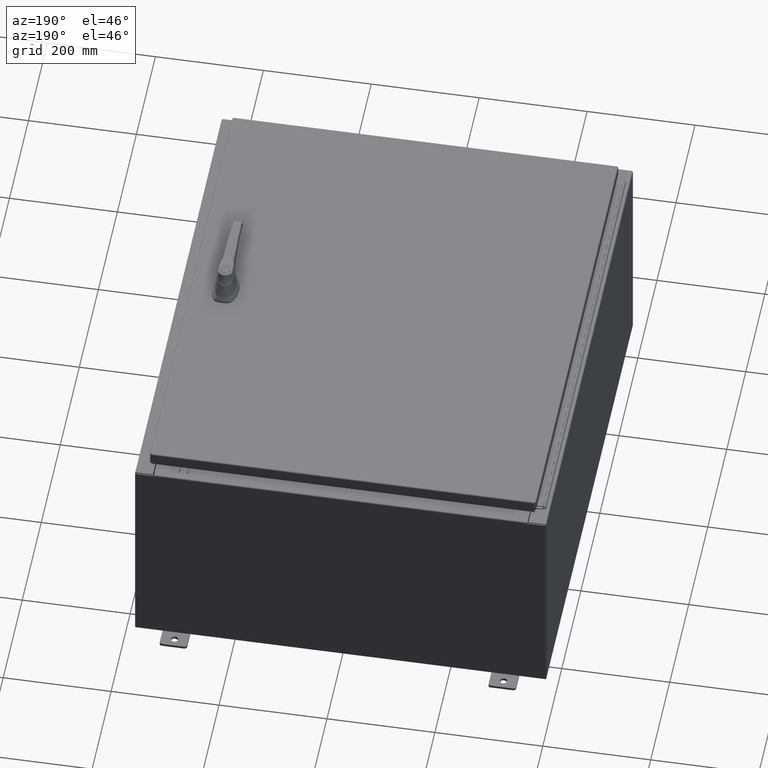
[diagram: clean part render]
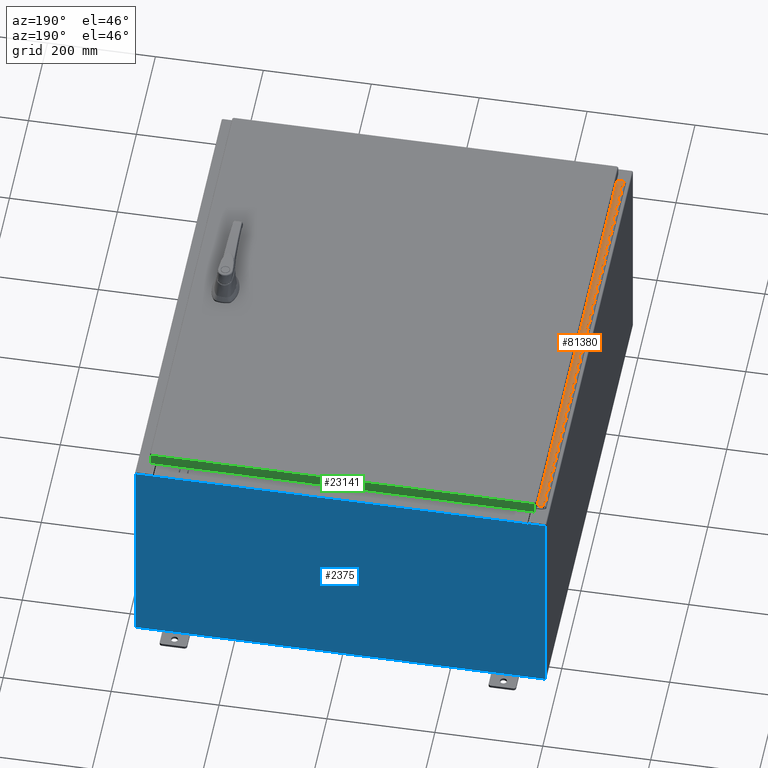
[diagram: same view with three faces highlighted in distinct colors, each labeled with its STEP entity id]
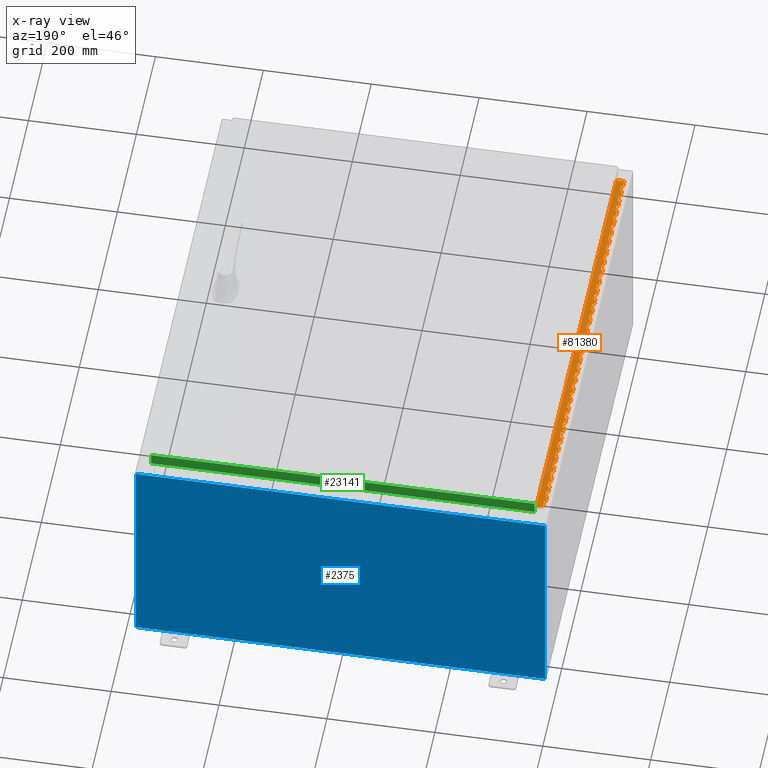
[diagram: x-ray of the same camera — body ghosted, the three highlighted faces saturated]
A machine part, auxiliary view with three faces highlighted in distinct colors.
The next image is the same camera in x-ray (body ghosted, the three faces saturated) — at least one of them is partly hidden behind the body in this view.
Their STEP definitions:

[orange] entity #81380 — the highlighted planar face has unit normal (-0, -0, 1).
#101 = DIRECTION ( 'NONE',  ( 3.389037039080723100E-015, 1.000000000000000000, -0.0000000000000000000 ) ) ;
#191 = EDGE_CURVE ( 'NONE', #114105, #89992, #98665, .T. ) ;
#212 = VECTOR ( 'NONE', #36417, 39.37007874015748100 ) ;
#215 = VERTEX_POINT ( 'NONE', #24467 ) ;
#260 = EDGE_CURVE ( 'NONE', #215, #13571, #36273, .T. ) ;
#279 = VECTOR ( 'NONE', #18577, 39.37007874015748100 ) ;
#288 = CARTESIAN_POINT ( 'NONE',  ( -0.6869999999999978300, 0.6754999999999996600, -33.00000000000000000 ) ) ;
#336 = ORIENTED_EDGE ( 'NONE', *, *, #86893, .F. ) ;
#352 = ORIENTED_EDGE ( 'NONE', *, *, #52121, .F. ) ;
#389 = DIRECTION ( 'NONE',  ( -3.389037039080723100E-015, -1.000000000000000000, 0.0000000000000000000 ) ) ;
#468 = VECTOR ( 'NONE', #18149, 39.37007874015748100 ) ;
#606 = CARTESIAN_POINT ( 'NONE',  ( -0.6869999999999973900, 0.8004999999999995500, -12.99999999999999800 ) ) ;
#738 = DIRECTION ( 'NONE',  ( 0.0000000000000000000, 0.0000000000000000000, 1.000000000000000000 ) ) ;
#828 = EDGE_CURVE ( 'NONE', #28234, #70765, #50987, .T. ) ;
#973 = CARTESIAN_POINT ( 'NONE',  ( -0.6869999999999998300, 0.07549999999999991400, -33.00000000000000000 ) ) ;
#1100 = CARTESIAN_POINT ( 'NONE',  ( -0.6869999999999973900, 0.8004999999999995500, -17.00000000000000000 ) ) ;
#1542 = EDGE_CURVE ( 'NONE', #75951, #48557, #82062, .T. ) ;
#1599 = ORIENTED_EDGE ( 'NONE', *, *, #5686, .F. ) ;
#1630 = VERTEX_POINT ( 'NONE', #108607 ) ;
#1786 = LINE ( 'NONE', #25657, #122040 ) ;
#1835 = DIRECTION ( 'NONE',  ( 0.0000000000000000000, 0.0000000000000000000, 1.000000000000000000 ) ) ;
#1857 = LINE ( 'NONE', #12426, #99772 ) ;
#1960 = VECTOR ( 'NONE', #50583, 39.37007874015748100 ) ;
#2044 = EDGE_CURVE ( 'NONE', #114877, #1630, #24129, .T. ) ;
#2070 = CARTESIAN_POINT ( 'NONE',  ( -0.6869999999999982800, 0.5504999999999997700, -25.50000000000000400 ) ) ;
#2125 = LINE ( 'NONE', #68511, #58440 ) ;
#2406 = CARTESIAN_POINT ( 'NONE',  ( -0.6869999999999978300, 0.6754999999999996600, -7.000000000000000000 ) ) ;
#2509 = DIRECTION ( 'NONE',  ( 0.0000000000000000000, 0.0000000000000000000, 1.000000000000000000 ) ) ;
#2661 = DIRECTION ( 'NONE',  ( 0.0000000000000000000, -0.0000000000000000000, -1.000000000000000000 ) ) ;
#2899 = CARTESIAN_POINT ( 'NONE',  ( -0.6869999999999978300, 0.6754999999999996600, -20.00000000000000000 ) ) ;
#3043 = CARTESIAN_POINT ( 'NONE',  ( -0.6869999999999978300, 0.6754999999999996600, -1.000000000000000000 ) ) ;
#3123 = DIRECTION ( 'NONE',  ( -3.389037039080723100E-015, -1.000000000000000000, 0.0000000000000000000 ) ) ;
#3141 = CARTESIAN_POINT ( 'NONE',  ( -0.6869999999999982800, 0.5504999999999997700, -3.500000000000000000 ) ) ;
#3157 = CARTESIAN_POINT ( 'NONE',  ( -0.6869999999999978300, 0.6754999999999996600, -2.000000000000000000 ) ) ;
#3434 = LINE ( 'NONE', #84450, #468 ) ;
#3451 = EDGE_CURVE ( 'NONE', #104999, #75951, #95232, .T. ) ;
#3515 = ORIENTED_EDGE ( 'NONE', *, *, #36219, .T. ) ;
#3662 = CARTESIAN_POINT ( 'NONE',  ( -0.6869999999999978300, 0.6754999999999996600, -11.50000000000000000 ) ) ;
#3896 = VERTEX_POINT ( 'NONE', #67620 ) ;
#3928 = VECTOR ( 'NONE', #738, 39.37007874015748100 ) ;
#4037 = CARTESIAN_POINT ( 'NONE',  ( -0.6869999999999978300, 0.6754999999999996600, -10.00000000000000000 ) ) ;
#4045 = VERTEX_POINT ( 'NONE', #28693 ) ;
#4227 = EDGE_CURVE ( 'NONE', #108559, #5040, #35682, .T. ) ;
#4241 = VECTOR ( 'NONE', #64926, 39.37007874015748100 ) ;
#4244 = VECTOR ( 'NONE', #123123, 39.37007874015748100 ) ;
#4298 = CARTESIAN_POINT ( 'NONE',  ( -0.6869999999999978300, 0.6754999999999996600, -27.00000000000000000 ) ) ;
#4471 = LINE ( 'NONE', #4805, #77138 ) ;
#4648 = CARTESIAN_POINT ( 'NONE',  ( -0.6869999999999978300, 0.6754999999999996600, -32.00000000000000000 ) ) ;
#4686 = ORIENTED_EDGE ( 'NONE', *, *, #100650, .T. ) ;
#4708 = VERTEX_POINT ( 'NONE', #25030 ) ;
#4805 = CARTESIAN_POINT ( 'NONE',  ( -0.6869999999999973900, 0.8004999999999995500, -19.50000000000000000 ) ) ;
#4860 = CARTESIAN_POINT ( 'NONE',  ( -0.6869999999999982800, 0.5504999999999997700, -3.500000000000000000 ) ) ;
#5015 = DIRECTION ( 'NONE',  ( -3.389037039080723100E-015, -1.000000000000000000, 0.0000000000000000000 ) ) ;
#5022 = CARTESIAN_POINT ( 'NONE',  ( -0.6869999999999978300, 0.6754999999999996600, -27.50000000000000000 ) ) ;
#5028 = VECTOR ( 'NONE', #8300, 39.37007874015748100 ) ;
#5031 = VECTOR ( 'NONE', #106146, 39.37007874015748100 ) ;
#5034 = VECTOR ( 'NONE', #80691, 39.37007874015748100 ) ;
#5040 = VERTEX_POINT ( 'NONE', #59169 ) ;
#5256 = ORIENTED_EDGE ( 'NONE', *, *, #28103, .F. ) ;
#5265 = CARTESIAN_POINT ( 'NONE',  ( -0.6869999999999978300, 0.6754999999999996600, -22.00000000000000000 ) ) ;
#5267 = CARTESIAN_POINT ( 'NONE',  ( -0.6869999999999978300, 0.6754999999999996600, -16.00000000000000000 ) ) ;
#5327 = EDGE_CURVE ( 'NONE', #9383, #42024, #63085, .T. ) ;
#5363 = DIRECTION ( 'NONE',  ( 3.389037039080723100E-015, 1.000000000000000000, -0.0000000000000000000 ) ) ;
#5686 = EDGE_CURVE ( 'NONE', #47910, #9546, #89789, .T. ) ;
#5801 = DIRECTION ( 'NONE',  ( 3.389037039080723100E-015, 1.000000000000000000, -0.0000000000000000000 ) ) ;
#5820 = VERTEX_POINT ( 'NONE', #45808 ) ;
#5999 = LINE ( 'NONE', #57468, #104016 ) ;
#6019 = ORIENTED_EDGE ( 'NONE', *, *, #50631, .F. ) ;
#6078 = LINE ( 'NONE', #6737, #81700 ) ;
#6155 = DIRECTION ( 'NONE',  ( 0.0000000000000000000, 0.0000000000000000000, 1.000000000000000000 ) ) ;
#6193 = CARTESIAN_POINT ( 'NONE',  ( -0.6869999999999973900, 0.8004999999999995500, -2.000000000000000000 ) ) ;
#6238 = VECTOR ( 'NONE', #81043, 39.37007874015748100 ) ;
#6245 = VERTEX_POINT ( 'NONE', #6373 ) ;
#6373 = CARTESIAN_POINT ( 'NONE',  ( -0.6869999999999978300, 0.6754999999999996600, -9.500000000000000000 ) ) ;
#6399 = DIRECTION ( 'NONE',  ( 3.389037039080723100E-015, 1.000000000000000000, -0.0000000000000000000 ) ) ;
#6737 = CARTESIAN_POINT ( 'NONE',  ( -0.6869999999999973900, 0.8004999999999995500, -9.500000000000000000 ) ) ;
#6749 = EDGE_CURVE ( 'NONE', #36766, #105922, #100061, .T. ) ;
#6897 = CARTESIAN_POINT ( 'NONE',  ( -0.6869999999999978300, 0.6754999999999996600, -17.50000000000000000 ) ) ;
#7062 = ORIENTED_EDGE ( 'NONE', *, *, #9548, .T. ) ;
#7544 = EDGE_CURVE ( 'NONE', #57124, #65717, #74683, .T. ) ;
#7705 = EDGE_CURVE ( 'NONE', #44871, #102143, #59777, .T. ) ;
#7710 = CARTESIAN_POINT ( 'NONE',  ( -0.6869999999999982800, 0.5504999999999997700, -10.50000000000000000 ) ) ;
#7801 = LINE ( 'NONE', #12720, #119122 ) ;
#7826 = VECTOR ( 'NONE', #11877, 39.37007874015748100 ) ;
#8034 = LINE ( 'NONE', #90245, #5034 ) ;
#8202 = EDGE_CURVE ( 'NONE', #118742, #8653, #55260, .T. ) ;
#8206 = CARTESIAN_POINT ( 'NONE',  ( -0.6869999999999998300, 0.07549999999999991400, -33.00000000000000000 ) ) ;
#8300 = DIRECTION ( 'NONE',  ( 0.0000000000000000000, 0.0000000000000000000, 1.000000000000000000 ) ) ;
#8339 = LINE ( 'NONE', #93109, #30542 ) ;
#8536 = CARTESIAN_POINT ( 'NONE',  ( -0.6869999999999978300, 0.6754999999999996600, -10.50000000000000000 ) ) ;
#8548 = LINE ( 'NONE', #46851, #55931 ) ;
#8653 = VERTEX_POINT ( 'NONE', #33553 ) ;
#9013 = VECTOR ( 'NONE', #53481, 39.37007874015748100 ) ;
#9051 = LINE ( 'NONE', #33348, #34195 ) ;
#9225 = CARTESIAN_POINT ( 'NONE',  ( -0.6869999999999973900, 0.8004999999999995500, -32.00000000000000000 ) ) ;
#9253 = LINE ( 'NONE', #101893, #37424 ) ;
#9364 = EDGE_CURVE ( 'NONE', #94923, #43598, #12145, .T. ) ;
#9383 = VERTEX_POINT ( 'NONE', #26403 ) ;
#9420 = LINE ( 'NONE', #109117, #101382 ) ;
#9546 = VERTEX_POINT ( 'NONE', #103639 ) ;
#9548 = EDGE_CURVE ( 'NONE', #101257, #61085, #50627, .T. ) ;
#9577 = VERTEX_POINT ( 'NONE', #84870 ) ;
#9584 = CARTESIAN_POINT ( 'NONE',  ( -0.6869999999999978300, 0.6754999999999996600, -21.00000000000000000 ) ) ;
#9835 = DIRECTION ( 'NONE',  ( 0.0000000000000000000, 0.0000000000000000000, 1.000000000000000000 ) ) ;
#10140 = LINE ( 'NONE', #30847, #108079 ) ;
#10440 = VECTOR ( 'NONE', #119272, 39.37007874015748100 ) ;
#10444 = VERTEX_POINT ( 'NONE', #53451 ) ;
#10446 = LINE ( 'NONE', #95687, #32606 ) ;
#10695 = ORIENTED_EDGE ( 'NONE', *, *, #56882, .F. ) ;
#10700 = VERTEX_POINT ( 'NONE', #57176 ) ;
#10759 = LINE ( 'NONE', #55329, #58171 ) ;
#10921 = LINE ( 'NONE', #105108, #105947 ) ;
#10949 = CARTESIAN_POINT ( 'NONE',  ( -0.6869999999999978300, 0.6754999999999996600, -30.50000000000000400 ) ) ;
#11343 = ORIENTED_EDGE ( 'NONE', *, *, #2044, .T. ) ;
#11373 = ORIENTED_EDGE ( 'NONE', *, *, #104358, .F. ) ;
#11379 = CARTESIAN_POINT ( 'NONE',  ( -0.6869999999999973900, 0.8004999999999995500, -8.000000000000000000 ) ) ;
#11478 = DIRECTION ( 'NONE',  ( 3.369016658928398200E-015, 1.000000000000000000, 0.0000000000000000000 ) ) ;
#11661 = VERTEX_POINT ( 'NONE', #120943 ) ;
#11686 = ORIENTED_EDGE ( 'NONE', *, *, #260, .F. ) ;
#11778 = CARTESIAN_POINT ( 'NONE',  ( -0.6869999999999982800, 0.5504999999999997700, -8.500000000000000000 ) ) ;
#11833 = DIRECTION ( 'NONE',  ( 3.389037039080723100E-015, 1.000000000000000000, -0.0000000000000000000 ) ) ;
#11866 = DIRECTION ( 'NONE',  ( 0.0000000000000000000, 0.0000000000000000000, 1.000000000000000000 ) ) ;
#11877 = DIRECTION ( 'NONE',  ( 0.0000000000000000000, -0.0000000000000000000, -1.000000000000000000 ) ) ;
#11931 = VERTEX_POINT ( 'NONE', #10949 ) ;
#12097 = EDGE_CURVE ( 'NONE', #57124, #88110, #38427, .T. ) ;
#12145 = LINE ( 'NONE', #82794, #110145 ) ;
#12180 = DIRECTION ( 'NONE',  ( 0.0000000000000000000, 0.0000000000000000000, 1.000000000000000000 ) ) ;
#12280 = VERTEX_POINT ( 'NONE', #101198 ) ;
#12372 = VECTOR ( 'NONE', #14200, 39.37007874015748100 ) ;
#12426 = CARTESIAN_POINT ( 'NONE',  ( -0.6869999999999973900, 0.8004999999999995500, -19.00000000000000000 ) ) ;
#12720 = CARTESIAN_POINT ( 'NONE',  ( -0.6869999999999973900, 0.8004999999999995500, -6.499999999999999100 ) ) ;
#12781 = DIRECTION ( 'NONE',  ( 3.369016658928398200E-015, 1.000000000000000000, 0.0000000000000000000 ) ) ;
#12963 = VERTEX_POINT ( 'NONE', #36716 ) ;
#13134 = VERTEX_POINT ( 'NONE', #60227 ) ;
#13173 = ORIENTED_EDGE ( 'NONE', *, *, #58462, .T. ) ;
#13211 = VECTOR ( 'NONE', #108333, 39.37007874015748100 ) ;
#13256 = EDGE_CURVE ( 'NONE', #93634, #104999, #67904, .T. ) ;
#13512 = ORIENTED_EDGE ( 'NONE', *, *, #91204, .T. ) ;
#13571 = VERTEX_POINT ( 'NONE', #105517 ) ;
#13650 = VERTEX_POINT ( 'NONE', #39854 ) ;
#13672 = LINE ( 'NONE', #90837, #108678 ) ;
#13797 = CARTESIAN_POINT ( 'NONE',  ( -0.6869999999999982800, 0.5504999999999997700, -30.50000000000000400 ) ) ;
#13957 = LINE ( 'NONE', #115458, #39160 ) ;
#13987 = VECTOR ( 'NONE', #89932, 39.37007874015748100 ) ;
#14081 = DIRECTION ( 'NONE',  ( 3.389037039080723100E-015, 1.000000000000000000, -0.0000000000000000000 ) ) ;
#14109 = ORIENTED_EDGE ( 'NONE', *, *, #84650, .F. ) ;
#14138 = VECTOR ( 'NONE', #86209, 39.37007874015748100 ) ;
#14200 = DIRECTION ( 'NONE',  ( 3.389037039080723100E-015, 1.000000000000000000, -0.0000000000000000000 ) ) ;
#14265 = VECTOR ( 'NONE', #45061, 39.37007874015748100 ) ;
#14310 = CARTESIAN_POINT ( 'NONE',  ( -0.6869999999999973900, 0.8004999999999995500, -20.50000000000000400 ) ) ;
#14492 = DIRECTION ( 'NONE',  ( 0.0000000000000000000, 0.0000000000000000000, 1.000000000000000000 ) ) ;
#14566 = LINE ( 'NONE', #77774, #61952 ) ;
#14604 = CARTESIAN_POINT ( 'NONE',  ( -0.6869999999999973900, 0.8004999999999995500, -23.99999999999999600 ) ) ;
#14958 = CARTESIAN_POINT ( 'NONE',  ( -0.6870000000000022800, -0.6245000000000003900, -33.00000000000000000 ) ) ;
#15473 = LINE ( 'NONE', #86329, #40665 ) ;
#15498 = CARTESIAN_POINT ( 'NONE',  ( -0.6869999999999978300, 0.6754999999999996600, -33.00000000000000000 ) ) ;
#15571 = ORIENTED_EDGE ( 'NONE', *, *, #81212, .F. ) ;
#15615 = ORIENTED_EDGE ( 'NONE', *, *, #116738, .F. ) ;
#15698 = LINE ( 'NONE', #11778, #63114 ) ;
#15846 = EDGE_CURVE ( 'NONE', #36766, #100586, #114761, .T. ) ;
#15955 = AXIS2_PLACEMENT_3D ( 'NONE', #96332, #39470, #105934 ) ;
#16243 = EDGE_CURVE ( 'NONE', #13134, #47720, #7801, .T. ) ;
#16421 = EDGE_CURVE ( 'NONE', #77074, #22118, #50675, .T. ) ;
#16679 = ORIENTED_EDGE ( 'NONE', *, *, #87573, .F. ) ;
#16713 = EDGE_CURVE ( 'NONE', #88701, #86492, #111628, .T. ) ;
#17114 = VECTOR ( 'NONE', #20899, 39.37007874015748100 ) ;
#17137 = VERTEX_POINT ( 'NONE', #120452 ) ;
#17255 = ORIENTED_EDGE ( 'NONE', *, *, #66627, .F. ) ;
#17293 = ORIENTED_EDGE ( 'NONE', *, *, #15846, .T. ) ;
#17952 = VERTEX_POINT ( 'NONE', #74122 ) ;
#18015 = VECTOR ( 'NONE', #56062, 39.37007874015748100 ) ;
#18106 = DIRECTION ( 'NONE',  ( 3.389037039080723100E-015, 1.000000000000000000, -0.0000000000000000000 ) ) ;
#18107 = CARTESIAN_POINT ( 'NONE',  ( -0.6869999999999978300, 0.6754999999999996600, -22.50000000000000000 ) ) ;
#18149 = DIRECTION ( 'NONE',  ( 0.0000000000000000000, -0.0000000000000000000, -1.000000000000000000 ) ) ;
#18212 = VECTOR ( 'NONE', #47789, 39.37007874015748100 ) ;
#18229 = LINE ( 'NONE', #28257, #40412 ) ;
#18570 = CARTESIAN_POINT ( 'NONE',  ( -0.6869999999999978300, 0.6754999999999996600, -4.500000000000000000 ) ) ;
#18572 = VECTOR ( 'NONE', #11478, 39.37007874015748100 ) ;
#18577 = DIRECTION ( 'NONE',  ( 0.0000000000000000000, 0.0000000000000000000, 1.000000000000000000 ) ) ;
#18692 = LINE ( 'NONE', #22733, #69060 ) ;
#18957 = EDGE_CURVE ( 'NONE', #30861, #101908, #45923, .T. ) ;
#18968 = CARTESIAN_POINT ( 'NONE',  ( -0.6869999999999982800, 0.5504999999999997700, -2.999999999999999600 ) ) ;
#19136 = EDGE_CURVE ( 'NONE', #83819, #19383, #109837, .T. ) ;
#19173 = CARTESIAN_POINT ( 'NONE',  ( -0.6869999999999973900, 0.8004999999999995500, -9.000000000000000000 ) ) ;
#19311 = EDGE_CURVE ( 'NONE', #20288, #70871, #34204, .T. ) ;
#19383 = VERTEX_POINT ( 'NONE', #3043 ) ;
#19557 = VECTOR ( 'NONE', #121436, 39.37007874015748100 ) ;
#20002 = DIRECTION ( 'NONE',  ( 3.389037039080723100E-015, 1.000000000000000000, -0.0000000000000000000 ) ) ;
#20010 = VECTOR ( 'NONE', #58785, 39.37007874015748100 ) ;
#20126 = DIRECTION ( 'NONE',  ( 0.0000000000000000000, 0.0000000000000000000, 1.000000000000000000 ) ) ;
#20288 = VERTEX_POINT ( 'NONE', #35113 ) ;
#20417 = EDGE_CURVE ( 'NONE', #22118, #36550, #102203, .T. ) ;
#20581 = EDGE_CURVE ( 'NONE', #27472, #116740, #14566, .T. ) ;
#20610 = DIRECTION ( 'NONE',  ( 0.0000000000000000000, -0.0000000000000000000, -1.000000000000000000 ) ) ;
#20810 = ORIENTED_EDGE ( 'NONE', *, *, #55608, .T. ) ;
#20899 = DIRECTION ( 'NONE',  ( 3.389037039080723100E-015, 1.000000000000000000, -0.0000000000000000000 ) ) ;
#20933 = LINE ( 'NONE', #11379, #121930 ) ;
#20985 = CARTESIAN_POINT ( 'NONE',  ( -0.6869999999999982800, 0.5504999999999997700, -9.500000000000000000 ) ) ;
#21262 = EDGE_CURVE ( 'NONE', #39952, #111709, #79729, .T. ) ;
#21358 = CARTESIAN_POINT ( 'NONE',  ( -0.6869999999999982800, 0.5504999999999997700, -11.99999999999999800 ) ) ;
#21509 = LINE ( 'NONE', #96502, #18572 ) ;
#21782 = VECTOR ( 'NONE', #46314, 39.37007874015748100 ) ;
#21807 = DIRECTION ( 'NONE',  ( 0.0000000000000000000, 0.0000000000000000000, 1.000000000000000000 ) ) ;
#21859 = VERTEX_POINT ( 'NONE', #107469 ) ;
#22118 = VERTEX_POINT ( 'NONE', #21358 ) ;
#22396 = CARTESIAN_POINT ( 'NONE',  ( -0.6869999999999982800, 0.5504999999999997700, -16.00000000000000000 ) ) ;
#22425 = CARTESIAN_POINT ( 'NONE',  ( -0.6869999999999982800, 0.5504999999999997700, -13.50000000000000000 ) ) ;
#22447 = ORIENTED_EDGE ( 'NONE', *, *, #95218, .F. ) ;
#22613 = VECTOR ( 'NONE', #117260, 39.37007874015748100 ) ;
#22664 = VECTOR ( 'NONE', #47499, 39.37007874015748100 ) ;
#22733 = CARTESIAN_POINT ( 'NONE',  ( -0.6869999999999973900, 0.8004999999999995500, -11.00000000000000000 ) ) ;
#22858 = CARTESIAN_POINT ( 'NONE',  ( -0.6869999999999973900, 0.8004999999999995500, -10.00000000000000000 ) ) ;
#22916 = CARTESIAN_POINT ( 'NONE',  ( -0.6869999999999978300, 0.6754999999999996600, -14.49999999999999800 ) ) ;
#22921 = CARTESIAN_POINT ( 'NONE',  ( -0.6869999999999982800, 0.5504999999999997700, -2.500000000000000000 ) ) ;
#23132 = CARTESIAN_POINT ( 'NONE',  ( -0.6869999999999982800, 0.5504999999999997700, -14.99999999999999800 ) ) ;
#23236 = CARTESIAN_POINT ( 'NONE',  ( -0.6869999999999973900, 0.8004999999999995500, -7.499999999999999100 ) ) ;
#23324 = ORIENTED_EDGE ( 'NONE', *, *, #77224, .T. ) ;
#23436 = EDGE_CURVE ( 'NONE', #105922, #88701, #71988, .T. ) ;
#23729 = CARTESIAN_POINT ( 'NONE',  ( -0.6869999999999973900, 0.8004999999999995500, -16.50000000000000000 ) ) ;
#23865 = ORIENTED_EDGE ( 'NONE', *, *, #7705, .F. ) ;
#23967 = ORIENTED_EDGE ( 'NONE', *, *, #21262, .T. ) ;
#24014 = ORIENTED_EDGE ( 'NONE', *, *, #93004, .F. ) ;
#24027 = LINE ( 'NONE', #49076, #43263 ) ;
#24129 = LINE ( 'NONE', #14958, #96905 ) ;
#24151 = VECTOR ( 'NONE', #50636, 39.37007874015748100 ) ;
#24467 = CARTESIAN_POINT ( 'NONE',  ( -0.6869999999999982800, 0.5504999999999997700, -28.00000000000000000 ) ) ;
#24690 = VERTEX_POINT ( 'NONE', #51748 ) ;
#24717 = EDGE_CURVE ( 'NONE', #11931, #5820, #117954, .T. ) ;
#24925 = VERTEX_POINT ( 'NONE', #91994 ) ;
#24965 = CARTESIAN_POINT ( 'NONE',  ( -0.6869999999999978300, 0.6754999999999996600, -5.000000000000000000 ) ) ;
#25030 = CARTESIAN_POINT ( 'NONE',  ( -0.6869999999999982800, 0.5504999999999997700, -17.00000000000000000 ) ) ;
#25339 = DIRECTION ( 'NONE',  ( 0.0000000000000000000, -0.0000000000000000000, -1.000000000000000000 ) ) ;
#25478 = DIRECTION ( 'NONE',  ( 0.0000000000000000000, -0.0000000000000000000, -1.000000000000000000 ) ) ;
#25657 = CARTESIAN_POINT ( 'NONE',  ( -0.6869999999999978300, 0.6754999999999996600, -33.00000000000000000 ) ) ;
#25662 = DIRECTION ( 'NONE',  ( 0.0000000000000000000, 0.0000000000000000000, 1.000000000000000000 ) ) ;
#25793 = VECTOR ( 'NONE', #6155, 39.37007874015748100 ) ;
#26022 = VERTEX_POINT ( 'NONE', #106387 ) ;
#26032 = VECTOR ( 'NONE', #110549, 39.37007874015748100 ) ;
#26034 = LINE ( 'NONE', #47575, #121107 ) ;
#26040 = CARTESIAN_POINT ( 'NONE',  ( -0.6869999999999978300, 0.6754999999999996600, -29.50000000000000000 ) ) ;
#26057 = DIRECTION ( 'NONE',  ( 0.0000000000000000000, -0.0000000000000000000, -1.000000000000000000 ) ) ;
#26072 = ORIENTED_EDGE ( 'NONE', *, *, #55558, .F. ) ;
#26149 = CARTESIAN_POINT ( 'NONE',  ( -0.6869999999999978300, 0.6754999999999996600, -13.50000000000000000 ) ) ;
#26403 = CARTESIAN_POINT ( 'NONE',  ( -0.6869999999999978300, 0.6754999999999996600, -15.50000000000000000 ) ) ;
#26408 = CARTESIAN_POINT ( 'NONE',  ( -0.6869999999999973900, 0.8004999999999995500, -21.00000000000000000 ) ) ;
#26529 = DIRECTION ( 'NONE',  ( -3.389037039080723100E-015, -1.000000000000000000, 0.0000000000000000000 ) ) ;
#26584 = ORIENTED_EDGE ( 'NONE', *, *, #75020, .F. ) ;
#26610 = ORIENTED_EDGE ( 'NONE', *, *, #61346, .F. ) ;
#26633 = CARTESIAN_POINT ( 'NONE',  ( -0.6869999999999982800, 0.5504999999999997700, -24.50000000000000000 ) ) ;
#26662 = FACE_OUTER_BOUND ( 'NONE', #68462, .T. ) ;
#27197 = CARTESIAN_POINT ( 'NONE',  ( -0.6869999999999978300, 0.6754999999999996600, -33.00000000000000000 ) ) ;
#27278 = CARTESIAN_POINT ( 'NONE',  ( -0.6869999999999973900, 0.8004999999999995500, -29.50000000000000000 ) ) ;
#27313 = EDGE_CURVE ( 'NONE', #46460, #61435, #62719, .T. ) ;
#27428 = EDGE_CURVE ( 'NONE', #4045, #68079, #59763, .T. ) ;
#27472 = VERTEX_POINT ( 'NONE', #26149 ) ;
#27857 = DIRECTION ( 'NONE',  ( 0.0000000000000000000, 0.0000000000000000000, 1.000000000000000000 ) ) ;
#28103 = EDGE_CURVE ( 'NONE', #62888, #82001, #38645, .T. ) ;
#28234 = VERTEX_POINT ( 'NONE', #122382 ) ;
#28257 = CARTESIAN_POINT ( 'NONE',  ( -0.6869999999999982800, 0.5504999999999997700, -32.50000000000000000 ) ) ;
#28491 = VERTEX_POINT ( 'NONE', #116089 ) ;
#28570 = LINE ( 'NONE', #35675, #50769 ) ;
#28632 = ORIENTED_EDGE ( 'NONE', *, *, #6749, .F. ) ;
#28693 = CARTESIAN_POINT ( 'NONE',  ( -0.6869999999999982800, 0.5504999999999997700, -5.500000000000000000 ) ) ;
#28915 = DIRECTION ( 'NONE',  ( 0.0000000000000000000, 0.0000000000000000000, 1.000000000000000000 ) ) ;
#28944 = LINE ( 'NONE', #63127, #79349 ) ;
#29126 = CARTESIAN_POINT ( 'NONE',  ( -0.6869999999999973900, 0.8004999999999995500, -15.50000000000000000 ) ) ;
#29300 = DIRECTION ( 'NONE',  ( 0.0000000000000000000, -0.0000000000000000000, -1.000000000000000000 ) ) ;
#29887 = VERTEX_POINT ( 'NONE', #9584 ) ;
#29972 = DIRECTION ( 'NONE',  ( -3.389037039080723100E-015, -1.000000000000000000, 0.0000000000000000000 ) ) ;
#30018 = ORIENTED_EDGE ( 'NONE', *, *, #101635, .F. ) ;
#30044 = DIRECTION ( 'NONE',  ( 3.389037039080723100E-015, 1.000000000000000000, -0.0000000000000000000 ) ) ;
#30073 = CARTESIAN_POINT ( 'NONE',  ( -0.6869999999999982800, 0.5504999999999997700, -21.00000000000000000 ) ) ;
#30221 = LINE ( 'NONE', #74138, #5028 ) ;
#30307 = CARTESIAN_POINT ( 'NONE',  ( -0.6869999999999982800, 0.5504999999999997700, -26.50000000000000400 ) ) ;
#30542 = VECTOR ( 'NONE', #45769, 39.37007874015748100 ) ;
#30669 = CARTESIAN_POINT ( 'NONE',  ( -0.6869999999999982800, 0.5504999999999997700, -29.99999999999999600 ) ) ;
#30690 = VERTEX_POINT ( 'NONE', #3157 ) ;
#30847 = CARTESIAN_POINT ( 'NONE',  ( -0.6869999999999973900, 0.8004999999999995500, -30.50000000000000400 ) ) ;
#30861 = VERTEX_POINT ( 'NONE', #42824 ) ;
#30995 = VERTEX_POINT ( 'NONE', #66013 ) ;
#31053 = VERTEX_POINT ( 'NONE', #57305 ) ;
#31344 = ORIENTED_EDGE ( 'NONE', *, *, #117456, .F. ) ;
#31380 = ORIENTED_EDGE ( 'NONE', *, *, #96679, .F. ) ;
#31905 = ORIENTED_EDGE ( 'NONE', *, *, #76882, .F. ) ;
#32204 = CARTESIAN_POINT ( 'NONE',  ( -0.6869999999999978300, 0.6754999999999996600, -11.99999999999999800 ) ) ;
#32298 = EDGE_CURVE ( 'NONE', #98077, #82628, #118230, .T. ) ;
#32421 = ORIENTED_EDGE ( 'NONE', *, *, #119831, .T. ) ;
#32445 = EDGE_CURVE ( 'NONE', #39952, #21859, #86972, .T. ) ;
#32453 = ORIENTED_EDGE ( 'NONE', *, *, #18957, .F. ) ;
#32520 = ORIENTED_EDGE ( 'NONE', *, *, #12097, .F. ) ;
#32556 = CARTESIAN_POINT ( 'NONE',  ( -0.6869999999999982800, 0.5504999999999997700, -17.99999999999999600 ) ) ;
#32573 = LINE ( 'NONE', #13797, #80023 ) ;
#32606 = VECTOR ( 'NONE', #20610, 39.37007874015748100 ) ;
#32701 = CARTESIAN_POINT ( 'NONE',  ( -0.6869999999999978300, 0.6754999999999996600, -23.00000000000000000 ) ) ;
#32714 = DIRECTION ( 'NONE',  ( 0.0000000000000000000, -0.0000000000000000000, -1.000000000000000000 ) ) ;
#32994 = LINE ( 'NONE', #78171, #7826 ) ;
#33092 = VERTEX_POINT ( 'NONE', #67711 ) ;
#33199 = EDGE_CURVE ( 'NONE', #71589, #43090, #118110, .T. ) ;
#33348 = CARTESIAN_POINT ( 'NONE',  ( -0.6869999999999973900, 0.8004999999999995500, -2.500000000000000000 ) ) ;
#33409 = VERTEX_POINT ( 'NONE', #41905 ) ;
#33499 = CARTESIAN_POINT ( 'NONE',  ( -0.6869999999999973900, 0.8004999999999995500, -28.00000000000000000 ) ) ;
#33553 = CARTESIAN_POINT ( 'NONE',  ( -0.6869999999999978300, 0.6754999999999996600, -9.000000000000000000 ) ) ;
#33625 = DIRECTION ( 'NONE',  ( 3.389037039080723100E-015, 1.000000000000000000, -0.0000000000000000000 ) ) ;
#33738 = CARTESIAN_POINT ( 'NONE',  ( -0.6869999999999973900, 0.8004999999999995500, -0.5000000000000000000 ) ) ;
#33932 = VERTEX_POINT ( 'NONE', #30073 ) ;
#34157 = LINE ( 'NONE', #43932, #9013 ) ;
#34195 = VECTOR ( 'NONE', #52377, 39.37007874015748100 ) ;
#34204 = LINE ( 'NONE', #78057, #72573 ) ;
#34237 = ORIENTED_EDGE ( 'NONE', *, *, #94681, .F. ) ;
#34326 = EDGE_CURVE ( 'NONE', #100708, #26022, #57214, .T. ) ;
#34438 = ORIENTED_EDGE ( 'NONE', *, *, #828, .T. ) ;
#34664 = VERTEX_POINT ( 'NONE', #51040 ) ;
#35070 = ORIENTED_EDGE ( 'NONE', *, *, #97393, .F. ) ;
#35113 = CARTESIAN_POINT ( 'NONE',  ( -0.6869999999999982800, 0.5504999999999997700, -17.50000000000000000 ) ) ;
#35361 = LINE ( 'NONE', #71948, #85830 ) ;
#35675 = CARTESIAN_POINT ( 'NONE',  ( -0.6869999999999973900, 0.8004999999999995500, -1.499999999999999800 ) ) ;
#35682 = LINE ( 'NONE', #109543, #86167 ) ;
#35719 = EDGE_CURVE ( 'NONE', #68079, #46092, #15473, .T. ) ;
#35880 = VECTOR ( 'NONE', #86258, 39.37007874015748100 ) ;
#36191 = DIRECTION ( 'NONE',  ( 0.0000000000000000000, -0.0000000000000000000, -1.000000000000000000 ) ) ;
#36219 = EDGE_CURVE ( 'NONE', #114105, #43090, #30221, .T. ) ;
#36273 = LINE ( 'NONE', #33499, #64432 ) ;
#36417 = DIRECTION ( 'NONE',  ( 0.0000000000000000000, 0.0000000000000000000, 1.000000000000000000 ) ) ;
#36550 = VERTEX_POINT ( 'NONE', #32204 ) ;
#36610 = ORIENTED_EDGE ( 'NONE', *, *, #36898, .F. ) ;
#36630 = CARTESIAN_POINT ( 'NONE',  ( -0.6869999999999982800, 0.5504999999999997700, -1.499999999999999800 ) ) ;
#36716 = CARTESIAN_POINT ( 'NONE',  ( -0.6869999999999982800, 0.5504999999999997700, -2.000000000000000000 ) ) ;
#36748 = CARTESIAN_POINT ( 'NONE',  ( -0.6869999999999982800, 0.5504999999999997700, -2.500000000000000000 ) ) ;
#36766 = VERTEX_POINT ( 'NONE', #18107 ) ;
#36819 = CARTESIAN_POINT ( 'NONE',  ( -0.6869999999999982800, 0.5504999999999997700, -30.50000000000000400 ) ) ;
#36898 = EDGE_CURVE ( 'NONE', #4708, #26022, #120752, .T. ) ;
#36965 = ORIENTED_EDGE ( 'NONE', *, *, #103261, .F. ) ;
#37001 = CARTESIAN_POINT ( 'NONE',  ( -0.6869999999999973900, 0.8004999999999995500, -5.500000000000000000 ) ) ;
#37024 = ORIENTED_EDGE ( 'NONE', *, *, #119328, .F. ) ;
#37129 = ORIENTED_EDGE ( 'NONE', *, *, #88308, .T. ) ;
#37424 = VECTOR ( 'NONE', #111463, 39.37007874015748100 ) ;
#37433 = ORIENTED_EDGE ( 'NONE', *, *, #115974, .T. ) ;
#37567 = ORIENTED_EDGE ( 'NONE', *, *, #9364, .F. ) ;
#37618 = VECTOR ( 'NONE', #41334, 39.37007874015748100 ) ;
#37681 = EDGE_CURVE ( 'NONE', #112750, #17952, #56732, .T. ) ;
#37727 = DIRECTION ( 'NONE',  ( 3.389037039080723100E-015, 1.000000000000000000, -0.0000000000000000000 ) ) ;
#37804 = DIRECTION ( 'NONE',  ( 0.0000000000000000000, -0.0000000000000000000, -1.000000000000000000 ) ) ;
#37811 = EDGE_CURVE ( 'NONE', #89992, #33932, #98341, .T. ) ;
#37824 = ORIENTED_EDGE ( 'NONE', *, *, #63494, .T. ) ;
#37945 = VECTOR ( 'NONE', #67554, 39.37007874015748100 ) ;
#38252 = VERTEX_POINT ( 'NONE', #94295 ) ;
#38259 = CARTESIAN_POINT ( 'NONE',  ( -0.6869999999999978300, 0.6754999999999996600, -14.99999999999999800 ) ) ;
#38294 = DIRECTION ( 'NONE',  ( 0.0000000000000000000, 0.0000000000000000000, 1.000000000000000000 ) ) ;
#38427 = LINE ( 'NONE', #23236, #13211 ) ;
#38571 = VECTOR ( 'NONE', #2509, 39.37007874015748100 ) ;
#38645 = LINE ( 'NONE', #92418, #102478 ) ;
#38800 = CARTESIAN_POINT ( 'NONE',  ( -0.6869999999999978300, 0.6754999999999996600, -2.500000000000000000 ) ) ;
#38812 = VERTEX_POINT ( 'NONE', #112064 ) ;
#38828 = VECTOR ( 'NONE', #30044, 39.37007874015748100 ) ;
#38905 = VERTEX_POINT ( 'NONE', #103329 ) ;
#38921 = ORIENTED_EDGE ( 'NONE', *, *, #24717, .T. ) ;
#39060 = ORIENTED_EDGE ( 'NONE', *, *, #112047, .F. ) ;
#39081 = LINE ( 'NONE', #118656, #108904 ) ;
#39122 = CARTESIAN_POINT ( 'NONE',  ( -0.6869999999999978300, 0.6754999999999996600, -3.500000000000000000 ) ) ;
#39160 = VECTOR ( 'NONE', #58512, 39.37007874015748100 ) ;
#39176 = EDGE_CURVE ( 'NONE', #38252, #95653, #118974, .T. ) ;
#39343 = CARTESIAN_POINT ( 'NONE',  ( -0.6869999999999978300, 0.6754999999999996600, -5.500000000000000000 ) ) ;
#39379 = CARTESIAN_POINT ( 'NONE',  ( -0.6869999999999982800, 0.5504999999999997700, -23.50000000000000000 ) ) ;
#39470 = DIRECTION ( 'NONE',  ( 1.000000000000000000, -3.369016658928398200E-015, 0.0000000000000000000 ) ) ;
#39556 = DIRECTION ( 'NONE',  ( -3.389037039080723100E-015, -1.000000000000000000, 0.0000000000000000000 ) ) ;
#39854 = CARTESIAN_POINT ( 'NONE',  ( -0.6869999999999978300, 0.6754999999999996600, -12.99999999999999800 ) ) ;
#39952 = VERTEX_POINT ( 'NONE', #71570 ) ;
#39967 = LINE ( 'NONE', #47104, #109816 ) ;
#40119 = EDGE_CURVE ( 'NONE', #114453, #38812, #97269, .T. ) ;
#40169 = CARTESIAN_POINT ( 'NONE',  ( -0.6869999999999978300, 0.6754999999999996600, -33.00000000000000000 ) ) ;
#40212 = CARTESIAN_POINT ( 'NONE',  ( -0.6869999999999982800, 0.5504999999999997700, -27.50000000000000000 ) ) ;
#40387 = CARTESIAN_POINT ( 'NONE',  ( -0.6869999999999973900, 0.8004999999999995500, -2.999999999999999600 ) ) ;
#40412 = VECTOR ( 'NONE', #37804, 39.37007874015748100 ) ;
#40665 = VECTOR ( 'NONE', #20002, 39.37007874015748100 ) ;
#40769 = CARTESIAN_POINT ( 'NONE',  ( -0.6869999999999982800, 0.5504999999999997700, -9.500000000000000000 ) ) ;
#40928 = CARTESIAN_POINT ( 'NONE',  ( -0.6869999999999973900, 0.8004999999999995500, -5.000000000000000000 ) ) ;
#41311 = DIRECTION ( 'NONE',  ( 0.0000000000000000000, 0.0000000000000000000, 1.000000000000000000 ) ) ;
#41334 = DIRECTION ( 'NONE',  ( 3.389037039080723100E-015, 1.000000000000000000, -0.0000000000000000000 ) ) ;
#41447 = VERTEX_POINT ( 'NONE', #118163 ) ;
#41525 = EDGE_CURVE ( 'NONE', #114453, #28491, #8034, .T. ) ;
#41670 = ORIENTED_EDGE ( 'NONE', *, *, #107811, .F. ) ;
#41731 = LINE ( 'NONE', #64482, #19557 ) ;
#41905 = CARTESIAN_POINT ( 'NONE',  ( -0.6869999999999978300, 0.6754999999999996600, -8.500000000000000000 ) ) ;
#42024 = VERTEX_POINT ( 'NONE', #86543 ) ;
#42468 = EDGE_CURVE ( 'NONE', #69907, #87214, #55295, .T. ) ;
#42634 = ORIENTED_EDGE ( 'NONE', *, *, #45364, .T. ) ;
#42664 = CARTESIAN_POINT ( 'NONE',  ( -0.6869999999999973900, 0.8004999999999995500, -10.50000000000000000 ) ) ;
#42696 = CARTESIAN_POINT ( 'NONE',  ( -0.6869999999999982800, 0.5504999999999997700, -32.00000000000000000 ) ) ;
#42698 = VECTOR ( 'NONE', #11866, 39.37007874015748100 ) ;
#42736 = DIRECTION ( 'NONE',  ( 3.389037039080723100E-015, 1.000000000000000000, -0.0000000000000000000 ) ) ;
#42756 = LINE ( 'NONE', #104221, #68018 ) ;
#42824 = CARTESIAN_POINT ( 'NONE',  ( -0.6869999999999978300, 0.6754999999999996600, -16.50000000000000000 ) ) ;
#42830 = EDGE_CURVE ( 'NONE', #83819, #24925, #28570, .T. ) ;
#42972 = LINE ( 'NONE', #64170, #121814 ) ;
#43090 = VERTEX_POINT ( 'NONE', #2899 ) ;
#43136 = VECTOR ( 'NONE', #84063, 39.37007874015748100 ) ;
#43206 = CARTESIAN_POINT ( 'NONE',  ( -0.6869999999999982800, 0.5504999999999997700, -26.00000000000000000 ) ) ;
#43263 = VECTOR ( 'NONE', #39556, 39.37007874015748100 ) ;
#43598 = VERTEX_POINT ( 'NONE', #44097 ) ;
#43674 = LINE ( 'NONE', #88130, #91207 ) ;
#43885 = ORIENTED_EDGE ( 'NONE', *, *, #4227, .T. ) ;
#43932 = CARTESIAN_POINT ( 'NONE',  ( -0.6869999999999978300, 0.6754999999999996600, -33.00000000000000000 ) ) ;
#44097 = CARTESIAN_POINT ( 'NONE',  ( -0.6869999999999982800, 0.5504999999999997700, -19.00000000000000000 ) ) ;
#44131 = VECTOR ( 'NONE', #59996, 39.37007874015748100 ) ;
#44871 = VERTEX_POINT ( 'NONE', #89558 ) ;
#45019 = DIRECTION ( 'NONE',  ( 0.0000000000000000000, -0.0000000000000000000, -1.000000000000000000 ) ) ;
#45061 = DIRECTION ( 'NONE',  ( -3.389037039080723100E-015, -1.000000000000000000, 0.0000000000000000000 ) ) ;
#45099 = LINE ( 'NONE', #47771, #95667 ) ;
#45294 = EDGE_CURVE ( 'NONE', #96019, #66614, #9051, .T. ) ;
#45307 = VECTOR ( 'NONE', #101, 39.37007874015748100 ) ;
#45348 = VECTOR ( 'NONE', #29972, 39.37007874015748100 ) ;
#45364 = EDGE_CURVE ( 'NONE', #30861, #87214, #101008, .T. ) ;
#45393 = CARTESIAN_POINT ( 'NONE',  ( -0.6869999999999982800, 0.5504999999999997700, -31.50000000000000400 ) ) ;
#45769 = DIRECTION ( 'NONE',  ( -3.389037039080723100E-015, -1.000000000000000000, 0.0000000000000000000 ) ) ;
#45808 = CARTESIAN_POINT ( 'NONE',  ( -0.6869999999999978300, 0.6754999999999996600, -29.99999999999999600 ) ) ;
#45809 = CARTESIAN_POINT ( 'NONE',  ( -0.6869999999999978300, 0.6754999999999996600, -14.00000000000000000 ) ) ;
#45837 = VERTEX_POINT ( 'NONE', #105956 ) ;
#45888 = LINE ( 'NONE', #26408, #77120 ) ;
#45923 = LINE ( 'NONE', #23729, #93488 ) ;
#45973 = DIRECTION ( 'NONE',  ( -3.389037039080723100E-015, -1.000000000000000000, 0.0000000000000000000 ) ) ;
#45999 = VECTOR ( 'NONE', #45973, 39.37007874015748100 ) ;
#46092 = VERTEX_POINT ( 'NONE', #54111 ) ;
#46141 = CARTESIAN_POINT ( 'NONE',  ( -0.6869999999999978300, 0.6754999999999996600, -33.00000000000000000 ) ) ;
#46210 = EDGE_CURVE ( 'NONE', #90682, #5040, #78581, .T. ) ;
#46314 = DIRECTION ( 'NONE',  ( 0.0000000000000000000, 0.0000000000000000000, 1.000000000000000000 ) ) ;
#46392 = VERTEX_POINT ( 'NONE', #98497 ) ;
#46401 = ORIENTED_EDGE ( 'NONE', *, *, #8202, .F. ) ;
#46460 = VERTEX_POINT ( 'NONE', #43206 ) ;
#46517 = ORIENTED_EDGE ( 'NONE', *, *, #72785, .F. ) ;
#46779 = VECTOR ( 'NONE', #29300, 39.37007874015748100 ) ;
#46851 = CARTESIAN_POINT ( 'NONE',  ( -0.6869999999999973900, 0.8004999999999995500, -21.50000000000000400 ) ) ;
#46859 = DIRECTION ( 'NONE',  ( 0.0000000000000000000, -0.0000000000000000000, -1.000000000000000000 ) ) ;
#46961 = LINE ( 'NONE', #121949, #21782 ) ;
#47077 = CARTESIAN_POINT ( 'NONE',  ( -0.6869999999999978300, 0.6754999999999996600, -4.000000000000000000 ) ) ;
#47104 = CARTESIAN_POINT ( 'NONE',  ( -0.6869999999999982800, 0.5504999999999997700, -16.50000000000000000 ) ) ;
#47120 = CARTESIAN_POINT ( 'NONE',  ( -0.6869999999999978300, 0.6754999999999996600, 0.0000000000000000000 ) ) ;
#47155 = LINE ( 'NONE', #97832, #44131 ) ;
#47320 = CARTESIAN_POINT ( 'NONE',  ( -0.6869999999999978300, 0.6754999999999996600, -24.99999999999999600 ) ) ;
#47396 = DIRECTION ( 'NONE',  ( -3.389037039080723100E-015, -1.000000000000000000, 0.0000000000000000000 ) ) ;
#47499 = DIRECTION ( 'NONE',  ( -3.389037039080723100E-015, -1.000000000000000000, 0.0000000000000000000 ) ) ;
#47575 = CARTESIAN_POINT ( 'NONE',  ( -0.6869999999999973900, 0.8004999999999995500, -26.50000000000000400 ) ) ;
#47711 = LINE ( 'NONE', #66115, #92244 ) ;
#47720 = VERTEX_POINT ( 'NONE', #106163 ) ;
#47771 = CARTESIAN_POINT ( 'NONE',  ( -0.6869999999999973900, 0.8004999999999995500, -17.99999999999999600 ) ) ;
#47789 = DIRECTION ( 'NONE',  ( 3.389037039080723100E-015, 1.000000000000000000, -0.0000000000000000000 ) ) ;
#47910 = VERTEX_POINT ( 'NONE', #4860 ) ;
#48178 = VECTOR ( 'NONE', #41311, 39.37007874015748100 ) ;
#48204 = VECTOR ( 'NONE', #79720, 39.37007874015748100 ) ;
#48255 = ORIENTED_EDGE ( 'NONE', *, *, #23436, .F. ) ;
#48276 = EDGE_CURVE ( 'NONE', #11931, #86897, #10140, .T. ) ;
#48291 = LINE ( 'NONE', #55527, #76546 ) ;
#48509 = VECTOR ( 'NONE', #5015, 39.37007874015748100 ) ;
#48557 = VERTEX_POINT ( 'NONE', #24965 ) ;
#48571 = DIRECTION ( 'NONE',  ( 0.0000000000000000000, -0.0000000000000000000, -1.000000000000000000 ) ) ;
#48920 = VECTOR ( 'NONE', #64430, 39.37007874015748100 ) ;
#48995 = EDGE_CURVE ( 'NONE', #61884, #110991, #119870, .T. ) ;
#49076 = CARTESIAN_POINT ( 'NONE',  ( -0.6869999999999973900, 0.8004999999999995500, -17.50000000000000000 ) ) ;
#49145 = CARTESIAN_POINT ( 'NONE',  ( -0.6869999999999978300, 0.6754999999999996600, -18.50000000000000000 ) ) ;
#49204 = CARTESIAN_POINT ( 'NONE',  ( -0.6869999999999978300, 0.6754999999999996600, -33.00000000000000000 ) ) ;
#49296 = DIRECTION ( 'NONE',  ( 0.0000000000000000000, 0.0000000000000000000, 1.000000000000000000 ) ) ;
#49459 = VECTOR ( 'NONE', #20126, 39.37007874015748100 ) ;
#49550 = DIRECTION ( 'NONE',  ( 0.0000000000000000000, -0.0000000000000000000, -1.000000000000000000 ) ) ;
#50103 = EDGE_CURVE ( 'NONE', #85389, #12280, #104905, .T. ) ;
#50225 = EDGE_CURVE ( 'NONE', #77108, #78861, #121183, .T. ) ;
#50312 = CARTESIAN_POINT ( 'NONE',  ( -0.6869999999999973900, 0.8004999999999995500, -28.50000000000000000 ) ) ;
#50548 = CARTESIAN_POINT ( 'NONE',  ( -0.6869999999999982800, 0.5504999999999997700, -7.499999999999999100 ) ) ;
#50575 = ORIENTED_EDGE ( 'NONE', *, *, #73539, .T. ) ;
#50583 = DIRECTION ( 'NONE',  ( 0.0000000000000000000, -0.0000000000000000000, -1.000000000000000000 ) ) ;
#50627 = LINE ( 'NONE', #65769, #279 ) ;
#50631 = EDGE_CURVE ( 'NONE', #17137, #106265, #18692, .T. ) ;
#50636 = DIRECTION ( 'NONE',  ( 3.389037039080723100E-015, 1.000000000000000000, -0.0000000000000000000 ) ) ;
#50663 = ORIENTED_EDGE ( 'NONE', *, *, #19136, .T. ) ;
#50675 = LINE ( 'NONE', #73592, #6238 ) ;
#50719 = VECTOR ( 'NONE', #60971, 39.37007874015748100 ) ;
#50740 = CARTESIAN_POINT ( 'NONE',  ( -0.6869999999999982800, 0.5504999999999997700, -20.50000000000000400 ) ) ;
#50769 = VECTOR ( 'NONE', #26529, 39.37007874015748100 ) ;
#50977 = VERTEX_POINT ( 'NONE', #83605 ) ;
#50987 = LINE ( 'NONE', #93902, #25793 ) ;
#51040 = CARTESIAN_POINT ( 'NONE',  ( -0.6869999999999982800, 0.5504999999999997700, -7.000000000000000000 ) ) ;
#51090 = CARTESIAN_POINT ( 'NONE',  ( -0.6869999999999982800, 0.5504999999999997700, -6.499999999999999100 ) ) ;
#51194 = CARTESIAN_POINT ( 'NONE',  ( -0.6869999999999982800, 0.5504999999999997700, -14.00000000000000000 ) ) ;
#51298 = VECTOR ( 'NONE', #92584, 39.37007874015748100 ) ;
#51454 = LINE ( 'NONE', #42664, #48509 ) ;
#51537 = LINE ( 'NONE', #288, #99102 ) ;
#51748 = CARTESIAN_POINT ( 'NONE',  ( -0.6869999999999978300, 0.6754999999999996600, -26.50000000000000400 ) ) ;
#51865 = CARTESIAN_POINT ( 'NONE',  ( -0.6869999999999973900, 0.8004999999999995500, -26.00000000000000000 ) ) ;
#52121 = EDGE_CURVE ( 'NONE', #45837, #100761, #47155, .T. ) ;
#52377 = DIRECTION ( 'NONE',  ( -3.389037039080723100E-015, -1.000000000000000000, 0.0000000000000000000 ) ) ;
#52540 = CARTESIAN_POINT ( 'NONE',  ( -0.6869999999999973900, 0.8004999999999995500, -7.000000000000000000 ) ) ;
#52556 = EDGE_CURVE ( 'NONE', #44871, #13571, #51537, .T. ) ;
#52569 = LINE ( 'NONE', #95297, #97189 ) ;
#52684 = DIRECTION ( 'NONE',  ( 0.0000000000000000000, 0.0000000000000000000, 1.000000000000000000 ) ) ;
#53200 = CARTESIAN_POINT ( 'NONE',  ( -0.6869999999999978300, 0.6754999999999996600, -33.00000000000000000 ) ) ;
#53256 = CARTESIAN_POINT ( 'NONE',  ( -0.6869999999999982800, 0.5504999999999997700, -28.50000000000000000 ) ) ;
#53310 = VECTOR ( 'NONE', #11833, 39.37007874015748100 ) ;
#53427 = ORIENTED_EDGE ( 'NONE', *, *, #109231, .T. ) ;
#53451 = CARTESIAN_POINT ( 'NONE',  ( -0.6869999999999978300, 0.6754999999999996600, -28.99999999999999600 ) ) ;
#53481 = DIRECTION ( 'NONE',  ( 0.0000000000000000000, 0.0000000000000000000, 1.000000000000000000 ) ) ;
#53488 = CARTESIAN_POINT ( 'NONE',  ( -0.6869999999999982800, 0.5504999999999997700, -5.500000000000000000 ) ) ;
#53794 = CARTESIAN_POINT ( 'NONE',  ( -0.6869999999999982800, 0.5504999999999997700, -24.99999999999999600 ) ) ;
#54111 = CARTESIAN_POINT ( 'NONE',  ( -0.6869999999999978300, 0.6754999999999996600, -6.000000000000000900 ) ) ;
#54183 = EDGE_CURVE ( 'NONE', #101788, #10444, #76600, .T. ) ;
#54455 = EDGE_CURVE ( 'NONE', #98077, #94923, #8339, .T. ) ;
#54468 = VECTOR ( 'NONE', #12180, 39.37007874015748100 ) ;
#54575 = LINE ( 'NONE', #8206, #4241 ) ;
#54913 = CARTESIAN_POINT ( 'NONE',  ( -0.6869999999999973900, 0.8004999999999995500, -14.49999999999999800 ) ) ;
#55035 = LINE ( 'NONE', #52540, #77355 ) ;
#55156 = CARTESIAN_POINT ( 'NONE',  ( -0.6869999999999978300, 0.6754999999999996600, -31.50000000000000400 ) ) ;
#55260 = LINE ( 'NONE', #19173, #105871 ) ;
#55284 = LINE ( 'NONE', #117085, #1960 ) ;
#55295 = LINE ( 'NONE', #104333, #24151 ) ;
#55329 = CARTESIAN_POINT ( 'NONE',  ( -0.6869999999999973900, 0.8004999999999995500, -1.000000000000000000 ) ) ;
#55527 = CARTESIAN_POINT ( 'NONE',  ( -0.6869999999999982800, 0.5504999999999997700, -0.5000000000000000000 ) ) ;
#55558 = EDGE_CURVE ( 'NONE', #120207, #70765, #21509, .T. ) ;
#55608 = EDGE_CURVE ( 'NONE', #61464, #50977, #43674, .T. ) ;
#55760 = DIRECTION ( 'NONE',  ( 0.0000000000000000000, 0.0000000000000000000, 1.000000000000000000 ) ) ;
#55931 = VECTOR ( 'NONE', #56383, 39.37007874015748100 ) ;
#55953 = DIRECTION ( 'NONE',  ( 0.0000000000000000000, 0.0000000000000000000, 1.000000000000000000 ) ) ;
#55977 = DIRECTION ( 'NONE',  ( 3.389037039080723100E-015, 1.000000000000000000, -0.0000000000000000000 ) ) ;
#56062 = DIRECTION ( 'NONE',  ( 0.0000000000000000000, -0.0000000000000000000, -1.000000000000000000 ) ) ;
#56066 = EDGE_CURVE ( 'NONE', #70871, #82628, #45099, .T. ) ;
#56383 = DIRECTION ( 'NONE',  ( -3.389037039080723100E-015, -1.000000000000000000, 0.0000000000000000000 ) ) ;
#56470 = VERTEX_POINT ( 'NONE', #42696 ) ;
#56523 = LINE ( 'NONE', #120140, #78766 ) ;
#56588 = CARTESIAN_POINT ( 'NONE',  ( -0.6869999999999973900, 0.8004999999999995500, -28.99999999999999600 ) ) ;
#56650 = DIRECTION ( 'NONE',  ( 0.0000000000000000000, -0.0000000000000000000, -1.000000000000000000 ) ) ;
#56732 = LINE ( 'NONE', #20985, #107319 ) ;
#56882 = EDGE_CURVE ( 'NONE', #21859, #46460, #101511, .T. ) ;
#57092 = VECTOR ( 'NONE', #36191, 39.37007874015748100 ) ;
#57124 = VERTEX_POINT ( 'NONE', #91130 ) ;
#57176 = CARTESIAN_POINT ( 'NONE',  ( -0.6869999999999982800, 0.5504999999999997700, -32.50000000000000000 ) ) ;
#57211 = VECTOR ( 'NONE', #42736, 39.37007874015748100 ) ;
#57214 = LINE ( 'NONE', #15498, #26032 ) ;
#57305 = CARTESIAN_POINT ( 'NONE',  ( -0.6869999999999982800, 0.5504999999999997700, -19.50000000000000000 ) ) ;
#57324 = DIRECTION ( 'NONE',  ( 3.389037039080723100E-015, 1.000000000000000000, -0.0000000000000000000 ) ) ;
#57468 = CARTESIAN_POINT ( 'NONE',  ( -0.6869999999999973900, 0.8004999999999995500, -11.50000000000000000 ) ) ;
#57569 = VECTOR ( 'NONE', #113153, 39.37007874015748100 ) ;
#57709 = DIRECTION ( 'NONE',  ( 0.0000000000000000000, -0.0000000000000000000, -1.000000000000000000 ) ) ;
#57730 = VECTOR ( 'NONE', #121429, 39.37007874015748100 ) ;
#58055 = VECTOR ( 'NONE', #18106, 39.37007874015748100 ) ;
#58171 = VECTOR ( 'NONE', #64876, 39.37007874015748100 ) ;
#58246 = EDGE_CURVE ( 'NONE', #9577, #13650, #68591, .T. ) ;
#58440 = VECTOR ( 'NONE', #1835, 39.37007874015748100 ) ;
#58456 = ORIENTED_EDGE ( 'NONE', *, *, #71781, .F. ) ;
#58462 = EDGE_CURVE ( 'NONE', #96019, #30690, #120593, .T. ) ;
#58512 = DIRECTION ( 'NONE',  ( 3.389037039080723100E-015, 1.000000000000000000, -0.0000000000000000000 ) ) ;
#58645 = EDGE_CURVE ( 'NONE', #67045, #5820, #13672, .T. ) ;
#58676 = DIRECTION ( 'NONE',  ( -3.389037039080723100E-015, -1.000000000000000000, 0.0000000000000000000 ) ) ;
#58785 = DIRECTION ( 'NONE',  ( -3.389037039080723100E-015, -1.000000000000000000, 0.0000000000000000000 ) ) ;
#59040 = LINE ( 'NONE', #119662, #112632 ) ;
#59120 = CARTESIAN_POINT ( 'NONE',  ( -0.6869999999999978300, 0.6754999999999996600, -33.00000000000000000 ) ) ;
#59169 = CARTESIAN_POINT ( 'NONE',  ( -0.6869999999999978300, 0.6754999999999996600, -2.999999999999999600 ) ) ;
#59375 = CARTESIAN_POINT ( 'NONE',  ( -0.6869999999999978300, 0.6754999999999996600, -33.00000000000000000 ) ) ;
#59517 = DIRECTION ( 'NONE',  ( 0.0000000000000000000, 0.0000000000000000000, 1.000000000000000000 ) ) ;
#59608 = DIRECTION ( 'NONE',  ( 3.389037039080723100E-015, 1.000000000000000000, -0.0000000000000000000 ) ) ;
#59670 = CARTESIAN_POINT ( 'NONE',  ( -0.6869999999999982800, 0.5504999999999997700, -22.50000000000000000 ) ) ;
#59739 = ORIENTED_EDGE ( 'NONE', *, *, #33199, .F. ) ;
#59763 = LINE ( 'NONE', #53488, #110364 ) ;
#59777 = LINE ( 'NONE', #50312, #85054 ) ;
#59792 = EDGE_CURVE ( 'NONE', #3896, #106681, #20933, .T. ) ;
#59996 = DIRECTION ( 'NONE',  ( 0.0000000000000000000, -0.0000000000000000000, -1.000000000000000000 ) ) ;
#60090 = LINE ( 'NONE', #51090, #48204 ) ;
#60162 = LINE ( 'NONE', #14604, #57211 ) ;
#60227 = CARTESIAN_POINT ( 'NONE',  ( -0.6869999999999978300, 0.6754999999999996600, -6.499999999999999100 ) ) ;
#60646 = VERTEX_POINT ( 'NONE', #53794 ) ;
#60658 = EDGE_CURVE ( 'NONE', #30995, #29887, #42972, .T. ) ;
#60971 = DIRECTION ( 'NONE',  ( 0.0000000000000000000, 0.0000000000000000000, 1.000000000000000000 ) ) ;
#61085 = VERTEX_POINT ( 'NONE', #105197 ) ;
#61331 = CARTESIAN_POINT ( 'NONE',  ( -0.6869999999999982800, 0.5504999999999997700, -11.50000000000000000 ) ) ;
#61346 = EDGE_CURVE ( 'NONE', #6245, #112750, #6078, .T. ) ;
#61435 = VERTEX_POINT ( 'NONE', #121247 ) ;
#61445 = ORIENTED_EDGE ( 'NONE', *, *, #1542, .F. ) ;
#61464 = VERTEX_POINT ( 'NONE', #55156 ) ;
#61473 = ORIENTED_EDGE ( 'NONE', *, *, #118346, .F. ) ;
#61518 = DIRECTION ( 'NONE',  ( -3.389037039080723100E-015, -1.000000000000000000, 0.0000000000000000000 ) ) ;
#61884 = VERTEX_POINT ( 'NONE', #51194 ) ;
#61952 = VECTOR ( 'NONE', #58676, 39.37007874015748100 ) ;
#62499 = VERTEX_POINT ( 'NONE', #22916 ) ;
#62554 = EDGE_CURVE ( 'NONE', #86897, #33092, #32573, .T. ) ;
#62675 = DIRECTION ( 'NONE',  ( 3.389037039080723100E-015, 1.000000000000000000, -0.0000000000000000000 ) ) ;
#62719 = LINE ( 'NONE', #51865, #12372 ) ;
#62818 = VERTEX_POINT ( 'NONE', #95880 ) ;
#62830 = ORIENTED_EDGE ( 'NONE', *, *, #89506, .F. ) ;
#62888 = VERTEX_POINT ( 'NONE', #30307 ) ;
#63085 = LINE ( 'NONE', #29126, #37945 ) ;
#63114 = VECTOR ( 'NONE', #2661, 39.37007874015748100 ) ;
#63127 = CARTESIAN_POINT ( 'NONE',  ( -0.6869999999999973900, 0.8004999999999995500, -22.00000000000000000 ) ) ;
#63477 = CARTESIAN_POINT ( 'NONE',  ( -0.6869999999999978300, 0.6754999999999996600, -19.50000000000000000 ) ) ;
#63494 = EDGE_CURVE ( 'NONE', #68889, #106265, #42756, .T. ) ;
#63728 = LINE ( 'NONE', #40169, #38571 ) ;
#63743 = LINE ( 'NONE', #33738, #10440 ) ;
#63958 = VECTOR ( 'NONE', #48571, 39.37007874015748100 ) ;
#64170 = CARTESIAN_POINT ( 'NONE',  ( -0.6869999999999978300, 0.6754999999999996600, -33.00000000000000000 ) ) ;
#64430 = DIRECTION ( 'NONE',  ( 0.0000000000000000000, -0.0000000000000000000, -1.000000000000000000 ) ) ;
#64432 = VECTOR ( 'NONE', #55977, 39.37007874015748100 ) ;
#64480 = VERTEX_POINT ( 'NONE', #98379 ) ;
#64482 = CARTESIAN_POINT ( 'NONE',  ( -0.6869999999999973900, 0.8004999999999995500, -32.50000000000000000 ) ) ;
#64876 = DIRECTION ( 'NONE',  ( 3.389037039080723100E-015, 1.000000000000000000, -0.0000000000000000000 ) ) ;
#64926 = DIRECTION ( 'NONE',  ( 0.0000000000000000000, 0.0000000000000000000, 1.000000000000000000 ) ) ;
#65074 = DIRECTION ( 'NONE',  ( 0.0000000000000000000, -0.0000000000000000000, -1.000000000000000000 ) ) ;
#65217 = VECTOR ( 'NONE', #38294, 39.37007874015748100 ) ;
#65525 = EDGE_CURVE ( 'NONE', #13134, #46092, #46961, .T. ) ;
#65654 = ORIENTED_EDGE ( 'NONE', *, *, #68849, .T. ) ;
#65717 = VERTEX_POINT ( 'NONE', #2406 ) ;
#65723 = EDGE_CURVE ( 'NONE', #46392, #86492, #119789, .T. ) ;
#65769 = CARTESIAN_POINT ( 'NONE',  ( -0.6869999999999978300, 0.6754999999999996600, -33.00000000000000000 ) ) ;
#65928 = ORIENTED_EDGE ( 'NONE', *, *, #50225, .F. ) ;
#65941 = LINE ( 'NONE', #70266, #113574 ) ;
#66013 = CARTESIAN_POINT ( 'NONE',  ( -0.6869999999999978300, 0.6754999999999996600, -21.50000000000000400 ) ) ;
#66115 = CARTESIAN_POINT ( 'NONE',  ( -0.6869999999999973900, 0.8004999999999995500, -23.50000000000000000 ) ) ;
#66171 = CARTESIAN_POINT ( 'NONE',  ( -0.6869999999999973900, 0.8004999999999995500, -11.99999999999999800 ) ) ;
#66229 = VERTEX_POINT ( 'NONE', #8536 ) ;
#66289 = ORIENTED_EDGE ( 'NONE', *, *, #32298, .T. ) ;
#66514 = EDGE_CURVE ( 'NONE', #108430, #118742, #15698, .T. ) ;
#66614 = VERTEX_POINT ( 'NONE', #22921 ) ;
#66627 = EDGE_CURVE ( 'NONE', #38905, #38812, #60162, .T. ) ;
#66824 = ORIENTED_EDGE ( 'NONE', *, *, #104259, .F. ) ;
#66945 = DIRECTION ( 'NONE',  ( 3.389037039080723100E-015, 1.000000000000000000, -0.0000000000000000000 ) ) ;
#67045 = VERTEX_POINT ( 'NONE', #30669 ) ;
#67268 = ORIENTED_EDGE ( 'NONE', *, *, #58246, .F. ) ;
#67461 = VECTOR ( 'NONE', #121326, 39.37007874015748100 ) ;
#67485 = LINE ( 'NONE', #99269, #118053 ) ;
#67544 = CARTESIAN_POINT ( 'NONE',  ( -0.6869999999999982800, 0.5504999999999997700, -20.00000000000000000 ) ) ;
#67554 = DIRECTION ( 'NONE',  ( -3.389037039080723100E-015, -1.000000000000000000, 0.0000000000000000000 ) ) ;
#67620 = CARTESIAN_POINT ( 'NONE',  ( -0.6869999999999982800, 0.5504999999999997700, -8.000000000000000000 ) ) ;
#67690 = ORIENTED_EDGE ( 'NONE', *, *, #108945, .F. ) ;
#67711 = CARTESIAN_POINT ( 'NONE',  ( -0.6869999999999982800, 0.5504999999999997700, -31.00000000000000000 ) ) ;
#67904 = LINE ( 'NONE', #118803, #90155 ) ;
#68018 = VECTOR ( 'NONE', #55953, 39.37007874015748100 ) ;
#68079 = VERTEX_POINT ( 'NONE', #78902 ) ;
#68120 = DIRECTION ( 'NONE',  ( 3.389037039080723100E-015, 1.000000000000000000, -0.0000000000000000000 ) ) ;
#68462 = EDGE_LOOP ( 'NONE', ( #84470, #11343, #80106, #115858, #13512, #36965, #46517, #37024, #20810, #14109, #103071, #113440, #38921, #121342, #91113, #336, #71170, #61473, #15615, #23865, #70578, #11686, #31380, #65928, #65654, #85782, #5256, #123038, #4686, #83199, #10695, #86363, #23967, #41670, #103289, #110072, #91845, #17255, #67690, #16679, #120566, #88839, #48255, #28632, #17293, #106933, #352, #88303, #97286, #79480, #79674, #87113, #3515, #59739, #34237, #62830, #7062, #58456, #37567, #116269, #66289, #106006, #85762, #119291, #85848, #36610, #96700, #32453, #42634, #80459, #11373, #98697, #50575, #76410, #83742, #98417, #72584, #93124, #30018, #69117, #32421, #67268, #99011, #77808, #37433, #97531, #73470, #72600, #37824, #6019, #105242, #39060, #23324, #111312, #76337, #26610, #37129, #46401, #83125, #35070, #53427, #76119, #84769, #32520, #70315, #94635, #66824, #104772, #103966, #118944, #109004, #24014, #69323, #61445, #72416, #93841, #120336, #31905, #1599, #22447, #43885, #106573, #77433, #112116, #13173, #78387, #101794, #101924, #50663, #31344, #26584, #15571, #34438, #26072 ) ) ;
#68511 = CARTESIAN_POINT ( 'NONE',  ( -0.6869999999999978300, 0.6754999999999996600, -33.00000000000000000 ) ) ;
#68591 = LINE ( 'NONE', #606, #18212 ) ;
#68607 = CARTESIAN_POINT ( 'NONE',  ( -0.6869999999999978300, 0.6754999999999996600, -33.00000000000000000 ) ) ;
#68849 = EDGE_CURVE ( 'NONE', #77108, #102856, #73370, .T. ) ;
#68878 = VECTOR ( 'NONE', #79617, 39.37007874015748100 ) ;
#68889 = VERTEX_POINT ( 'NONE', #3662 ) ;
#69060 = VECTOR ( 'NONE', #89066, 39.37007874015748100 ) ;
#69117 = ORIENTED_EDGE ( 'NONE', *, *, #20581, .F. ) ;
#69323 = ORIENTED_EDGE ( 'NONE', *, *, #105447, .T. ) ;
#69907 = VERTEX_POINT ( 'NONE', #22396 ) ;
#70167 = VECTOR ( 'NONE', #66945, 39.37007874015748100 ) ;
#70266 = CARTESIAN_POINT ( 'NONE',  ( -0.6869999999999973900, 0.8004999999999995500, -3.500000000000000000 ) ) ;
#70315 = ORIENTED_EDGE ( 'NONE', *, *, #7544, .T. ) ;
#70444 = CARTESIAN_POINT ( 'NONE',  ( -0.6869999999999982800, 0.5504999999999997700, -13.50000000000000000 ) ) ;
#70560 = LINE ( 'NONE', #9225, #45307 ) ;
#70578 = ORIENTED_EDGE ( 'NONE', *, *, #52556, .T. ) ;
#70765 = VERTEX_POINT ( 'NONE', #47120 ) ;
#70792 = LINE ( 'NONE', #6193, #96106 ) ;
#70871 = VERTEX_POINT ( 'NONE', #32556 ) ;
#71170 = ORIENTED_EDGE ( 'NONE', *, *, #54183, .T. ) ;
#71570 = CARTESIAN_POINT ( 'NONE',  ( -0.6869999999999978300, 0.6754999999999996600, -25.50000000000000400 ) ) ;
#71589 = VERTEX_POINT ( 'NONE', #67544 ) ;
#71781 = EDGE_CURVE ( 'NONE', #43598, #61085, #1857, .T. ) ;
#71948 = CARTESIAN_POINT ( 'NONE',  ( -0.6869999999999978300, 0.6754999999999996600, -33.00000000000000000 ) ) ;
#71988 = LINE ( 'NONE', #76592, #46779 ) ;
#72327 = VERTEX_POINT ( 'NONE', #47077 ) ;
#72416 = ORIENTED_EDGE ( 'NONE', *, *, #3451, .F. ) ;
#72573 = VECTOR ( 'NONE', #87598, 39.37007874015748100 ) ;
#72584 = ORIENTED_EDGE ( 'NONE', *, *, #104708, .T. ) ;
#72600 = ORIENTED_EDGE ( 'NONE', *, *, #80825, .F. ) ;
#72785 = EDGE_CURVE ( 'NONE', #110982, #56470, #56523, .T. ) ;
#73015 = DIRECTION ( 'NONE',  ( -3.389037039080723100E-015, -1.000000000000000000, 0.0000000000000000000 ) ) ;
#73200 = VECTOR ( 'NONE', #106601, 39.37007874015748100 ) ;
#73370 = LINE ( 'NONE', #79064, #48178 ) ;
#73470 = ORIENTED_EDGE ( 'NONE', *, *, #16421, .F. ) ;
#73539 = EDGE_CURVE ( 'NONE', #9383, #109964, #34157, .T. ) ;
#73592 = CARTESIAN_POINT ( 'NONE',  ( -0.6869999999999982800, 0.5504999999999997700, -11.50000000000000000 ) ) ;
#73758 = LINE ( 'NONE', #70444, #121386 ) ;
#74122 = CARTESIAN_POINT ( 'NONE',  ( -0.6869999999999982800, 0.5504999999999997700, -10.00000000000000000 ) ) ;
#74138 = CARTESIAN_POINT ( 'NONE',  ( -0.6869999999999978300, 0.6754999999999996600, -33.00000000000000000 ) ) ;
#74683 = LINE ( 'NONE', #76913, #49459 ) ;
#75020 = EDGE_CURVE ( 'NONE', #113820, #64480, #48291, .T. ) ;
#75753 = EDGE_CURVE ( 'NONE', #100761, #100586, #28944, .T. ) ;
#75904 = EDGE_CURVE ( 'NONE', #24925, #12963, #118029, .T. ) ;
#75947 = DIRECTION ( 'NONE',  ( 3.389037039080723100E-015, 1.000000000000000000, -0.0000000000000000000 ) ) ;
#75951 = VERTEX_POINT ( 'NONE', #122975 ) ;
#76119 = ORIENTED_EDGE ( 'NONE', *, *, #59792, .F. ) ;
#76332 = EDGE_CURVE ( 'NONE', #17952, #82449, #119467, .T. ) ;
#76337 = ORIENTED_EDGE ( 'NONE', *, *, #37681, .F. ) ;
#76403 = CARTESIAN_POINT ( 'NONE',  ( -0.6869999999999982800, 0.5504999999999997700, -4.500000000000000000 ) ) ;
#76410 = ORIENTED_EDGE ( 'NONE', *, *, #106147, .F. ) ;
#76461 = LINE ( 'NONE', #113365, #95757 ) ;
#76546 = VECTOR ( 'NONE', #65074, 39.37007874015748100 ) ;
#76592 = CARTESIAN_POINT ( 'NONE',  ( -0.6869999999999982800, 0.5504999999999997700, -22.50000000000000000 ) ) ;
#76600 = LINE ( 'NONE', #114447, #3928 ) ;
#76882 = EDGE_CURVE ( 'NONE', #9546, #72327, #13957, .T. ) ;
#76913 = CARTESIAN_POINT ( 'NONE',  ( -0.6869999999999978300, 0.6754999999999996600, -33.00000000000000000 ) ) ;
#77074 = VERTEX_POINT ( 'NONE', #61331 ) ;
#77108 = VERTEX_POINT ( 'NONE', #5022 ) ;
#77120 = VECTOR ( 'NONE', #83215, 39.37007874015748100 ) ;
#77138 = VECTOR ( 'NONE', #61518, 39.37007874015748100 ) ;
#77224 = EDGE_CURVE ( 'NONE', #66229, #82449, #91026, .T. ) ;
#77246 = CARTESIAN_POINT ( 'NONE',  ( -0.6869999999999973900, 0.8004999999999995500, -27.50000000000000000 ) ) ;
#77355 = VECTOR ( 'NONE', #5363, 39.37007874015748100 ) ;
#77433 = ORIENTED_EDGE ( 'NONE', *, *, #111060, .F. ) ;
#77774 = CARTESIAN_POINT ( 'NONE',  ( -0.6869999999999973900, 0.8004999999999995500, -13.50000000000000000 ) ) ;
#77808 = ORIENTED_EDGE ( 'NONE', *, *, #50103, .F. ) ;
#78057 = CARTESIAN_POINT ( 'NONE',  ( -0.6869999999999982800, 0.5504999999999997700, -17.50000000000000000 ) ) ;
#78171 = CARTESIAN_POINT ( 'NONE',  ( -0.6869999999999982800, 0.5504999999999997700, -12.49999999999999800 ) ) ;
#78387 = ORIENTED_EDGE ( 'NONE', *, *, #101674, .F. ) ;
#78581 = LINE ( 'NONE', #40387, #53310 ) ;
#78766 = VECTOR ( 'NONE', #25478, 39.37007874015748100 ) ;
#78861 = VERTEX_POINT ( 'NONE', #40212 ) ;
#78902 = CARTESIAN_POINT ( 'NONE',  ( -0.6869999999999982800, 0.5504999999999997700, -6.000000000000000900 ) ) ;
#79020 = DIRECTION ( 'NONE',  ( -3.389037039080723100E-015, -1.000000000000000000, 0.0000000000000000000 ) ) ;
#79064 = CARTESIAN_POINT ( 'NONE',  ( -0.6869999999999978300, 0.6754999999999996600, -33.00000000000000000 ) ) ;
#79349 = VECTOR ( 'NONE', #6399, 39.37007874015748100 ) ;
#79435 = CARTESIAN_POINT ( 'NONE',  ( -0.6869999999999978300, 0.6754999999999996600, -8.000000000000000000 ) ) ;
#79480 = ORIENTED_EDGE ( 'NONE', *, *, #120157, .F. ) ;
#79617 = DIRECTION ( 'NONE',  ( 3.389037039080723100E-015, 1.000000000000000000, -0.0000000000000000000 ) ) ;
#79674 = ORIENTED_EDGE ( 'NONE', *, *, #37811, .F. ) ;
#79720 = DIRECTION ( 'NONE',  ( 0.0000000000000000000, -0.0000000000000000000, -1.000000000000000000 ) ) ;
#79729 = LINE ( 'NONE', #59375, #54468 ) ;
#79792 = DIRECTION ( 'NONE',  ( -3.389037039080723100E-015, -1.000000000000000000, 0.0000000000000000000 ) ) ;
#80023 = VECTOR ( 'NONE', #80082, 39.37007874015748100 ) ;
#80082 = DIRECTION ( 'NONE',  ( 0.0000000000000000000, -0.0000000000000000000, -1.000000000000000000 ) ) ;
#80088 = VERTEX_POINT ( 'NONE', #115054 ) ;
#80106 = ORIENTED_EDGE ( 'NONE', *, *, #123081, .F. ) ;
#80399 = VERTEX_POINT ( 'NONE', #39343 ) ;
#80459 = ORIENTED_EDGE ( 'NONE', *, *, #42468, .F. ) ;
#80652 = EDGE_CURVE ( 'NONE', #93634, #72327, #118877, .T. ) ;
#80691 = DIRECTION ( 'NONE',  ( -3.389037039080723100E-015, -1.000000000000000000, 0.0000000000000000000 ) ) ;
#80789 = CARTESIAN_POINT ( 'NONE',  ( -0.6869999999999978300, 0.6754999999999996600, -33.00000000000000000 ) ) ;
#80825 = EDGE_CURVE ( 'NONE', #68889, #77074, #5999, .T. ) ;
#81043 = DIRECTION ( 'NONE',  ( 0.0000000000000000000, -0.0000000000000000000, -1.000000000000000000 ) ) ;
#81212 = EDGE_CURVE ( 'NONE', #28234, #113820, #63743, .T. ) ;
#81282 = CARTESIAN_POINT ( 'NONE',  ( -0.6869999999999982800, 0.5504999999999997700, -20.50000000000000400 ) ) ;
#81380 = ADVANCED_FACE ( 'NONE', ( #26662 ), #86757, .T. ) ;
#81606 = DIRECTION ( 'NONE',  ( 3.389037039080723100E-015, 1.000000000000000000, -0.0000000000000000000 ) ) ;
#81700 = VECTOR ( 'NONE', #73015, 39.37007874015748100 ) ;
#82001 = VERTEX_POINT ( 'NONE', #92303 ) ;
#82062 = LINE ( 'NONE', #40928, #37618 ) ;
#82075 = EDGE_CURVE ( 'NONE', #62499, #38252, #111258, .T. ) ;
#82312 = LINE ( 'NONE', #26633, #57092 ) ;
#82447 = DIRECTION ( 'NONE',  ( 0.0000000000000000000, 0.0000000000000000000, 1.000000000000000000 ) ) ;
#82449 = VERTEX_POINT ( 'NONE', #4037 ) ;
#82628 = VERTEX_POINT ( 'NONE', #91867 ) ;
#82735 = EDGE_CURVE ( 'NONE', #110465, #17137, #118778, .T. ) ;
#82794 = CARTESIAN_POINT ( 'NONE',  ( -0.6869999999999982800, 0.5504999999999997700, -18.50000000000000000 ) ) ;
#83125 = ORIENTED_EDGE ( 'NONE', *, *, #66514, .F. ) ;
#83199 = ORIENTED_EDGE ( 'NONE', *, *, #27313, .F. ) ;
#83215 = DIRECTION ( 'NONE',  ( 3.389037039080723100E-015, 1.000000000000000000, -0.0000000000000000000 ) ) ;
#83605 = CARTESIAN_POINT ( 'NONE',  ( -0.6869999999999978300, 0.6754999999999996600, -31.00000000000000000 ) ) ;
#83742 = ORIENTED_EDGE ( 'NONE', *, *, #39176, .F. ) ;
#83819 = VERTEX_POINT ( 'NONE', #96660 ) ;
#84035 = VECTOR ( 'NONE', #112579, 39.37007874015748100 ) ;
#84063 = DIRECTION ( 'NONE',  ( -3.389037039080723100E-015, -1.000000000000000000, 0.0000000000000000000 ) ) ;
#84450 = CARTESIAN_POINT ( 'NONE',  ( -0.6869999999999982800, 0.5504999999999997700, -29.50000000000000000 ) ) ;
#84470 = ORIENTED_EDGE ( 'NONE', *, *, #90992, .F. ) ;
#84650 = EDGE_CURVE ( 'NONE', #33092, #50977, #59040, .T. ) ;
#84769 = ORIENTED_EDGE ( 'NONE', *, *, #89360, .F. ) ;
#84870 = CARTESIAN_POINT ( 'NONE',  ( -0.6869999999999982800, 0.5504999999999997700, -12.99999999999999800 ) ) ;
#85054 = VECTOR ( 'NONE', #3123, 39.37007874015748100 ) ;
#85166 = CARTESIAN_POINT ( 'NONE',  ( -0.6869999999999973900, 0.8004999999999995500, -22.50000000000000000 ) ) ;
#85389 = VERTEX_POINT ( 'NONE', #118573 ) ;
#85762 = ORIENTED_EDGE ( 'NONE', *, *, #19311, .F. ) ;
#85782 = ORIENTED_EDGE ( 'NONE', *, *, #87367, .F. ) ;
#85830 = VECTOR ( 'NONE', #119357, 39.37007874015748100 ) ;
#85848 = ORIENTED_EDGE ( 'NONE', *, *, #34326, .T. ) ;
#86167 = VECTOR ( 'NONE', #52684, 39.37007874015748100 ) ;
#86209 = DIRECTION ( 'NONE',  ( 0.0000000000000000000, -0.0000000000000000000, -1.000000000000000000 ) ) ;
#86258 = DIRECTION ( 'NONE',  ( 0.0000000000000000000, -0.0000000000000000000, -1.000000000000000000 ) ) ;
#86329 = CARTESIAN_POINT ( 'NONE',  ( -0.6869999999999973900, 0.8004999999999995500, -6.000000000000000900 ) ) ;
#86363 = ORIENTED_EDGE ( 'NONE', *, *, #32445, .F. ) ;
#86492 = VERTEX_POINT ( 'NONE', #32701 ) ;
#86543 = CARTESIAN_POINT ( 'NONE',  ( -0.6869999999999982800, 0.5504999999999997700, -15.50000000000000000 ) ) ;
#86614 = EDGE_CURVE ( 'NONE', #34664, #65717, #55035, .T. ) ;
#86757 = PLANE ( 'NONE',  #15955 ) ;
#86860 = CARTESIAN_POINT ( 'NONE',  ( -0.6869999999999973900, 0.8004999999999995500, -23.00000000000000000 ) ) ;
#86893 = EDGE_CURVE ( 'NONE', #101788, #80088, #113050, .T. ) ;
#86897 = VERTEX_POINT ( 'NONE', #36819 ) ;
#86972 = LINE ( 'NONE', #111577, #14265 ) ;
#87113 = ORIENTED_EDGE ( 'NONE', *, *, #191, .F. ) ;
#87214 = VERTEX_POINT ( 'NONE', #5267 ) ;
#87227 = CARTESIAN_POINT ( 'NONE',  ( -0.6869999999999973900, 0.8004999999999995500, -20.00000000000000000 ) ) ;
#87367 = EDGE_CURVE ( 'NONE', #82001, #102856, #9253, .T. ) ;
#87573 = EDGE_CURVE ( 'NONE', #46392, #11661, #47711, .T. ) ;
#87598 = DIRECTION ( 'NONE',  ( 0.0000000000000000000, -0.0000000000000000000, -1.000000000000000000 ) ) ;
#87787 = CARTESIAN_POINT ( 'NONE',  ( -0.6869999999999978300, 0.6754999999999996600, -20.50000000000000400 ) ) ;
#88110 = VERTEX_POINT ( 'NONE', #50548 ) ;
#88130 = CARTESIAN_POINT ( 'NONE',  ( -0.6869999999999978300, 0.6754999999999996600, -33.00000000000000000 ) ) ;
#88303 = ORIENTED_EDGE ( 'NONE', *, *, #92222, .F. ) ;
#88308 = EDGE_CURVE ( 'NONE', #6245, #8653, #104135, .T. ) ;
#88701 = VERTEX_POINT ( 'NONE', #118233 ) ;
#88839 = ORIENTED_EDGE ( 'NONE', *, *, #16713, .F. ) ;
#89066 = DIRECTION ( 'NONE',  ( 3.389037039080723100E-015, 1.000000000000000000, -0.0000000000000000000 ) ) ;
#89298 = LINE ( 'NONE', #39379, #35880 ) ;
#89360 = EDGE_CURVE ( 'NONE', #88110, #3896, #10446, .T. ) ;
#89506 = EDGE_CURVE ( 'NONE', #101257, #31053, #4471, .T. ) ;
#89558 = CARTESIAN_POINT ( 'NONE',  ( -0.6869999999999978300, 0.6754999999999996600, -28.50000000000000000 ) ) ;
#89789 = LINE ( 'NONE', #3141, #14138 ) ;
#89932 = DIRECTION ( 'NONE',  ( 0.0000000000000000000, 0.0000000000000000000, 1.000000000000000000 ) ) ;
#89974 = LINE ( 'NONE', #37001, #84035 ) ;
#89992 = VERTEX_POINT ( 'NONE', #81282 ) ;
#90055 = DIRECTION ( 'NONE',  ( -3.389037039080723100E-015, -1.000000000000000000, 0.0000000000000000000 ) ) ;
#90155 = VECTOR ( 'NONE', #109256, 39.37007874015748100 ) ;
#90245 = CARTESIAN_POINT ( 'NONE',  ( -0.6869999999999973900, 0.8004999999999995500, -24.50000000000000000 ) ) ;
#90682 = VERTEX_POINT ( 'NONE', #18968 ) ;
#90837 = CARTESIAN_POINT ( 'NONE',  ( -0.6869999999999973900, 0.8004999999999995500, -29.99999999999999600 ) ) ;
#90992 = EDGE_CURVE ( 'NONE', #114877, #120207, #54575, .T. ) ;
#91026 = LINE ( 'NONE', #110396, #94062 ) ;
#91113 = ORIENTED_EDGE ( 'NONE', *, *, #97283, .F. ) ;
#91130 = CARTESIAN_POINT ( 'NONE',  ( -0.6869999999999978300, 0.6754999999999996600, -7.499999999999999100 ) ) ;
#91204 = EDGE_CURVE ( 'NONE', #62818, #119301, #93237, .T. ) ;
#91207 = VECTOR ( 'NONE', #21807, 39.37007874015748100 ) ;
#91421 = CARTESIAN_POINT ( 'NONE',  ( -0.6869999999999982800, 0.5504999999999997700, -4.500000000000000000 ) ) ;
#91845 = ORIENTED_EDGE ( 'NONE', *, *, #40119, .T. ) ;
#91867 = CARTESIAN_POINT ( 'NONE',  ( -0.6869999999999978300, 0.6754999999999996600, -17.99999999999999600 ) ) ;
#91994 = CARTESIAN_POINT ( 'NONE',  ( -0.6869999999999982800, 0.5504999999999997700, -1.499999999999999800 ) ) ;
#92222 = EDGE_CURVE ( 'NONE', #30995, #45837, #8548, .T. ) ;
#92244 = VECTOR ( 'NONE', #123056, 39.37007874015748100 ) ;
#92303 = CARTESIAN_POINT ( 'NONE',  ( -0.6869999999999982800, 0.5504999999999997700, -27.00000000000000000 ) ) ;
#92418 = CARTESIAN_POINT ( 'NONE',  ( -0.6869999999999982800, 0.5504999999999997700, -26.50000000000000400 ) ) ;
#92584 = DIRECTION ( 'NONE',  ( -3.389037039080723100E-015, -1.000000000000000000, 0.0000000000000000000 ) ) ;
#93004 = EDGE_CURVE ( 'NONE', #80399, #4045, #89974, .T. ) ;
#93109 = CARTESIAN_POINT ( 'NONE',  ( -0.6869999999999973900, 0.8004999999999995500, -18.50000000000000000 ) ) ;
#93124 = ORIENTED_EDGE ( 'NONE', *, *, #48995, .F. ) ;
#93237 = LINE ( 'NONE', #68607, #42698 ) ;
#93488 = VECTOR ( 'NONE', #90055, 39.37007874015748100 ) ;
#93627 = CARTESIAN_POINT ( 'NONE',  ( -0.6869999999999998300, 0.07549999999999991400, 0.0000000000000000000 ) ) ;
#93634 = VERTEX_POINT ( 'NONE', #18570 ) ;
#93841 = ORIENTED_EDGE ( 'NONE', *, *, #13256, .F. ) ;
#93902 = CARTESIAN_POINT ( 'NONE',  ( -0.6869999999999978300, 0.6754999999999996600, -33.00000000000000000 ) ) ;
#94062 = VECTOR ( 'NONE', #119929, 39.37007874015748100 ) ;
#94295 = CARTESIAN_POINT ( 'NONE',  ( -0.6869999999999982800, 0.5504999999999997700, -14.49999999999999800 ) ) ;
#94635 = ORIENTED_EDGE ( 'NONE', *, *, #86614, .F. ) ;
#94681 = EDGE_CURVE ( 'NONE', #31053, #71589, #76461, .T. ) ;
#94751 = CARTESIAN_POINT ( 'NONE',  ( -0.6869999999999982800, 0.5504999999999997700, -8.500000000000000000 ) ) ;
#94923 = VERTEX_POINT ( 'NONE', #119045 ) ;
#95218 = EDGE_CURVE ( 'NONE', #108559, #47910, #65941, .T. ) ;
#95232 = LINE ( 'NONE', #76403, #63958 ) ;
#95297 = CARTESIAN_POINT ( 'NONE',  ( -0.6869999999999978300, 0.6754999999999996600, -33.00000000000000000 ) ) ;
#95653 = VERTEX_POINT ( 'NONE', #23132 ) ;
#95667 = VECTOR ( 'NONE', #57324, 39.37007874015748100 ) ;
#95671 = DIRECTION ( 'NONE',  ( -3.389037039080723100E-015, -1.000000000000000000, 0.0000000000000000000 ) ) ;
#95687 = CARTESIAN_POINT ( 'NONE',  ( -0.6869999999999982800, 0.5504999999999997700, -7.499999999999999100 ) ) ;
#95757 = VECTOR ( 'NONE', #46859, 39.37007874015748100 ) ;
#95880 = CARTESIAN_POINT ( 'NONE',  ( -0.6869999999999978300, 0.6754999999999996600, -32.50000000000000000 ) ) ;
#96019 = VERTEX_POINT ( 'NONE', #38800 ) ;
#96106 = VECTOR ( 'NONE', #81606, 39.37007874015748100 ) ;
#96332 = CARTESIAN_POINT ( 'NONE',  ( -0.6870000000000022800, -0.6245000000000003900, -33.00000000000000000 ) ) ;
#96502 = CARTESIAN_POINT ( 'NONE',  ( -0.6870000000000022800, -0.6245000000000003900, 0.0000000000000000000 ) ) ;
#96565 = LINE ( 'NONE', #102918, #45999 ) ;
#96660 = CARTESIAN_POINT ( 'NONE',  ( -0.6869999999999978300, 0.6754999999999996600, -1.499999999999999800 ) ) ;
#96679 = EDGE_CURVE ( 'NONE', #78861, #215, #10921, .T. ) ;
#96700 = ORIENTED_EDGE ( 'NONE', *, *, #120288, .F. ) ;
#96905 = VECTOR ( 'NONE', #12781, 39.37007874015748100 ) ;
#97030 = LINE ( 'NONE', #49204, #5031 ) ;
#97189 = VECTOR ( 'NONE', #28915, 39.37007874015748100 ) ;
#97269 = LINE ( 'NONE', #27197, #116608 ) ;
#97283 = EDGE_CURVE ( 'NONE', #80088, #67045, #3434, .T. ) ;
#97286 = ORIENTED_EDGE ( 'NONE', *, *, #60658, .T. ) ;
#97393 = EDGE_CURVE ( 'NONE', #33409, #108430, #98387, .T. ) ;
#97531 = ORIENTED_EDGE ( 'NONE', *, *, #20417, .F. ) ;
#97571 = EDGE_CURVE ( 'NONE', #12280, #9577, #32994, .T. ) ;
#97832 = CARTESIAN_POINT ( 'NONE',  ( -0.6869999999999982800, 0.5504999999999997700, -21.50000000000000400 ) ) ;
#98077 = VERTEX_POINT ( 'NONE', #49145 ) ;
#98197 = CARTESIAN_POINT ( 'NONE',  ( -0.6869999999999982800, 0.5504999999999997700, -16.50000000000000000 ) ) ;
#98341 = LINE ( 'NONE', #50740, #22613 ) ;
#98379 = CARTESIAN_POINT ( 'NONE',  ( -0.6869999999999982800, 0.5504999999999997700, -1.000000000000000000 ) ) ;
#98387 = LINE ( 'NONE', #114019, #22664 ) ;
#98417 = ORIENTED_EDGE ( 'NONE', *, *, #82075, .F. ) ;
#98497 = CARTESIAN_POINT ( 'NONE',  ( -0.6869999999999978300, 0.6754999999999996600, -23.50000000000000000 ) ) ;
#98665 = LINE ( 'NONE', #14310, #20010 ) ;
#98697 = ORIENTED_EDGE ( 'NONE', *, *, #5327, .F. ) ;
#99011 = ORIENTED_EDGE ( 'NONE', *, *, #97571, .F. ) ;
#99102 = VECTOR ( 'NONE', #9835, 39.37007874015748100 ) ;
#99269 = CARTESIAN_POINT ( 'NONE',  ( -0.6869999999999982800, 0.5504999999999997700, -15.50000000000000000 ) ) ;
#99521 = CARTESIAN_POINT ( 'NONE',  ( -0.6869999999999978300, 0.6754999999999996600, -33.00000000000000000 ) ) ;
#99772 = VECTOR ( 'NONE', #59608, 39.37007874015748100 ) ;
#100061 = LINE ( 'NONE', #85166, #122415 ) ;
#100575 = DIRECTION ( 'NONE',  ( 0.0000000000000000000, 0.0000000000000000000, 1.000000000000000000 ) ) ;
#100586 = VERTEX_POINT ( 'NONE', #5265 ) ;
#100650 = EDGE_CURVE ( 'NONE', #24690, #61435, #35361, .T. ) ;
#100708 = VERTEX_POINT ( 'NONE', #6897 ) ;
#100761 = VERTEX_POINT ( 'NONE', #102303 ) ;
#101008 = LINE ( 'NONE', #53200, #104051 ) ;
#101198 = CARTESIAN_POINT ( 'NONE',  ( -0.6869999999999982800, 0.5504999999999997700, -12.49999999999999800 ) ) ;
#101257 = VERTEX_POINT ( 'NONE', #63477 ) ;
#101382 = VECTOR ( 'NONE', #14081, 39.37007874015748100 ) ;
#101511 = LINE ( 'NONE', #2070, #73200 ) ;
#101635 = EDGE_CURVE ( 'NONE', #116740, #61884, #73758, .T. ) ;
#101674 = EDGE_CURVE ( 'NONE', #12963, #30690, #70792, .T. ) ;
#101788 = VERTEX_POINT ( 'NONE', #26040 ) ;
#101794 = ORIENTED_EDGE ( 'NONE', *, *, #75904, .F. ) ;
#101893 = CARTESIAN_POINT ( 'NONE',  ( -0.6869999999999973900, 0.8004999999999995500, -27.00000000000000000 ) ) ;
#101908 = VERTEX_POINT ( 'NONE', #98197 ) ;
#101924 = ORIENTED_EDGE ( 'NONE', *, *, #42830, .F. ) ;
#102010 = CARTESIAN_POINT ( 'NONE',  ( -0.6869999999999978300, 0.6754999999999996600, -11.00000000000000000 ) ) ;
#102143 = VERTEX_POINT ( 'NONE', #53256 ) ;
#102187 = CARTESIAN_POINT ( 'NONE',  ( -0.6869999999999973900, 0.8004999999999995500, -12.49999999999999800 ) ) ;
#102203 = LINE ( 'NONE', #66171, #4244 ) ;
#102303 = CARTESIAN_POINT ( 'NONE',  ( -0.6869999999999982800, 0.5504999999999997700, -22.00000000000000000 ) ) ;
#102478 = VECTOR ( 'NONE', #26057, 39.37007874015748100 ) ;
#102482 = CARTESIAN_POINT ( 'NONE',  ( -0.6869999999999982800, 0.5504999999999997700, -10.50000000000000000 ) ) ;
#102844 = CARTESIAN_POINT ( 'NONE',  ( -0.6869999999999978300, 0.6754999999999996600, -33.00000000000000000 ) ) ;
#102856 = VERTEX_POINT ( 'NONE', #4298 ) ;
#102918 = CARTESIAN_POINT ( 'NONE',  ( -0.6869999999999973900, 0.8004999999999995500, -31.50000000000000400 ) ) ;
#103071 = ORIENTED_EDGE ( 'NONE', *, *, #62554, .F. ) ;
#103171 = CARTESIAN_POINT ( 'NONE',  ( -0.6869999999999978300, 0.6754999999999996600, -24.50000000000000000 ) ) ;
#103261 = EDGE_CURVE ( 'NONE', #56470, #119301, #70560, .T. ) ;
#103289 = ORIENTED_EDGE ( 'NONE', *, *, #114648, .F. ) ;
#103329 = CARTESIAN_POINT ( 'NONE',  ( -0.6869999999999982800, 0.5504999999999997700, -23.99999999999999600 ) ) ;
#103418 = CARTESIAN_POINT ( 'NONE',  ( -0.6869999999999978300, 0.6754999999999996600, -33.00000000000000000 ) ) ;
#103639 = CARTESIAN_POINT ( 'NONE',  ( -0.6869999999999982800, 0.5504999999999997700, -4.000000000000000000 ) ) ;
#103966 = ORIENTED_EDGE ( 'NONE', *, *, #65525, .T. ) ;
#104016 = VECTOR ( 'NONE', #95671, 39.37007874015748100 ) ;
#104051 = VECTOR ( 'NONE', #100575, 39.37007874015748100 ) ;
#104135 = LINE ( 'NONE', #102844, #212 ) ;
#104161 = CARTESIAN_POINT ( 'NONE',  ( -0.6869999999999973900, 0.8004999999999995500, -14.00000000000000000 ) ) ;
#104221 = CARTESIAN_POINT ( 'NONE',  ( -0.6869999999999978300, 0.6754999999999996600, -33.00000000000000000 ) ) ;
#104259 = EDGE_CURVE ( 'NONE', #47720, #34664, #60090, .T. ) ;
#104333 = CARTESIAN_POINT ( 'NONE',  ( -0.6869999999999973900, 0.8004999999999995500, -16.00000000000000000 ) ) ;
#104358 = EDGE_CURVE ( 'NONE', #42024, #69907, #67485, .T. ) ;
#104708 = EDGE_CURVE ( 'NONE', #62499, #110991, #52569, .T. ) ;
#104772 = ORIENTED_EDGE ( 'NONE', *, *, #16243, .F. ) ;
#104905 = LINE ( 'NONE', #102187, #51298 ) ;
#104999 = VERTEX_POINT ( 'NONE', #91421 ) ;
#105108 = CARTESIAN_POINT ( 'NONE',  ( -0.6869999999999982800, 0.5504999999999997700, -27.50000000000000000 ) ) ;
#105197 = CARTESIAN_POINT ( 'NONE',  ( -0.6869999999999978300, 0.6754999999999996600, -19.00000000000000000 ) ) ;
#105242 = ORIENTED_EDGE ( 'NONE', *, *, #82735, .F. ) ;
#105447 = EDGE_CURVE ( 'NONE', #80399, #48557, #2125, .T. ) ;
#105517 = CARTESIAN_POINT ( 'NONE',  ( -0.6869999999999978300, 0.6754999999999996600, -28.00000000000000000 ) ) ;
#105871 = VECTOR ( 'NONE', #75947, 39.37007874015748100 ) ;
#105922 = VERTEX_POINT ( 'NONE', #59670 ) ;
#105934 = DIRECTION ( 'NONE',  ( 3.369016658928398200E-015, 1.000000000000000000, 0.0000000000000000000 ) ) ;
#105947 = VECTOR ( 'NONE', #57709, 39.37007874015748100 ) ;
#105956 = CARTESIAN_POINT ( 'NONE',  ( -0.6869999999999982800, 0.5504999999999997700, -21.50000000000000400 ) ) ;
#106006 = ORIENTED_EDGE ( 'NONE', *, *, #56066, .F. ) ;
#106146 = DIRECTION ( 'NONE',  ( 0.0000000000000000000, 0.0000000000000000000, 1.000000000000000000 ) ) ;
#106147 = EDGE_CURVE ( 'NONE', #95653, #109964, #39081, .T. ) ;
#106163 = CARTESIAN_POINT ( 'NONE',  ( -0.6869999999999982800, 0.5504999999999997700, -6.499999999999999100 ) ) ;
#106265 = VERTEX_POINT ( 'NONE', #102010 ) ;
#106387 = CARTESIAN_POINT ( 'NONE',  ( -0.6869999999999978300, 0.6754999999999996600, -17.00000000000000000 ) ) ;
#106573 = ORIENTED_EDGE ( 'NONE', *, *, #46210, .F. ) ;
#106601 = DIRECTION ( 'NONE',  ( 0.0000000000000000000, -0.0000000000000000000, -1.000000000000000000 ) ) ;
#106681 = VERTEX_POINT ( 'NONE', #79435 ) ;
#106933 = ORIENTED_EDGE ( 'NONE', *, *, #75753, .F. ) ;
#107319 = VECTOR ( 'NONE', #49550, 39.37007874015748100 ) ;
#107469 = CARTESIAN_POINT ( 'NONE',  ( -0.6869999999999982800, 0.5504999999999997700, -25.50000000000000400 ) ) ;
#107811 = EDGE_CURVE ( 'NONE', #60646, #111709, #9420, .T. ) ;
#107888 = VECTOR ( 'NONE', #59517, 39.37007874015748100 ) ;
#108079 = VECTOR ( 'NONE', #116774, 39.37007874015748100 ) ;
#108119 = LINE ( 'NONE', #36748, #57569 ) ;
#108333 = DIRECTION ( 'NONE',  ( -3.389037039080723100E-015, -1.000000000000000000, 0.0000000000000000000 ) ) ;
#108430 = VERTEX_POINT ( 'NONE', #94751 ) ;
#108559 = VERTEX_POINT ( 'NONE', #39122 ) ;
#108607 = CARTESIAN_POINT ( 'NONE',  ( -0.6869999999999982800, 0.5504999999999997700, -33.00000000000000000 ) ) ;
#108678 = VECTOR ( 'NONE', #33625, 39.37007874015748100 ) ;
#108904 = VECTOR ( 'NONE', #5801, 39.37007874015748100 ) ;
#108945 = EDGE_CURVE ( 'NONE', #11661, #38905, #89298, .T. ) ;
#109004 = ORIENTED_EDGE ( 'NONE', *, *, #27428, .F. ) ;
#109117 = CARTESIAN_POINT ( 'NONE',  ( -0.6869999999999973900, 0.8004999999999995500, -24.99999999999999600 ) ) ;
#109231 = EDGE_CURVE ( 'NONE', #33409, #106681, #1786, .T. ) ;
#109256 = DIRECTION ( 'NONE',  ( -3.389037039080723100E-015, -1.000000000000000000, 0.0000000000000000000 ) ) ;
#109543 = CARTESIAN_POINT ( 'NONE',  ( -0.6869999999999978300, 0.6754999999999996600, -33.00000000000000000 ) ) ;
#109816 = VECTOR ( 'NONE', #56650, 39.37007874015748100 ) ;
#109837 = LINE ( 'NONE', #46141, #65217 ) ;
#109964 = VERTEX_POINT ( 'NONE', #38259 ) ;
#110072 = ORIENTED_EDGE ( 'NONE', *, *, #41525, .F. ) ;
#110145 = VECTOR ( 'NONE', #45019, 39.37007874015748100 ) ;
#110364 = VECTOR ( 'NONE', #25339, 39.37007874015748100 ) ;
#110396 = CARTESIAN_POINT ( 'NONE',  ( -0.6869999999999978300, 0.6754999999999996600, -33.00000000000000000 ) ) ;
#110465 = VERTEX_POINT ( 'NONE', #102482 ) ;
#110549 = DIRECTION ( 'NONE',  ( 0.0000000000000000000, 0.0000000000000000000, 1.000000000000000000 ) ) ;
#110982 = VERTEX_POINT ( 'NONE', #45393 ) ;
#110985 = CARTESIAN_POINT ( 'NONE',  ( -0.6869999999999982800, 0.5504999999999997700, -9.000000000000000000 ) ) ;
#110991 = VERTEX_POINT ( 'NONE', #45809 ) ;
#111060 = EDGE_CURVE ( 'NONE', #66614, #90682, #108119, .T. ) ;
#111258 = LINE ( 'NONE', #54913, #57730 ) ;
#111312 = ORIENTED_EDGE ( 'NONE', *, *, #76332, .F. ) ;
#111463 = DIRECTION ( 'NONE',  ( 3.389037039080723100E-015, 1.000000000000000000, -0.0000000000000000000 ) ) ;
#111577 = CARTESIAN_POINT ( 'NONE',  ( -0.6869999999999973900, 0.8004999999999995500, -25.50000000000000400 ) ) ;
#111604 = LINE ( 'NONE', #56588, #58055 ) ;
#111628 = LINE ( 'NONE', #86860, #38828 ) ;
#111709 = VERTEX_POINT ( 'NONE', #47320 ) ;
#111746 = VECTOR ( 'NONE', #27857, 39.37007874015748100 ) ;
#112047 = EDGE_CURVE ( 'NONE', #66229, #110465, #51454, .T. ) ;
#112064 = CARTESIAN_POINT ( 'NONE',  ( -0.6869999999999978300, 0.6754999999999996600, -23.99999999999999600 ) ) ;
#112116 = ORIENTED_EDGE ( 'NONE', *, *, #45294, .F. ) ;
#112579 = DIRECTION ( 'NONE',  ( -3.389037039080723100E-015, -1.000000000000000000, 0.0000000000000000000 ) ) ;
#112632 = VECTOR ( 'NONE', #62675, 39.37007874015748100 ) ;
#112750 = VERTEX_POINT ( 'NONE', #40769 ) ;
#113050 = LINE ( 'NONE', #27278, #43136 ) ;
#113153 = DIRECTION ( 'NONE',  ( 0.0000000000000000000, -0.0000000000000000000, -1.000000000000000000 ) ) ;
#113365 = CARTESIAN_POINT ( 'NONE',  ( -0.6869999999999982800, 0.5504999999999997700, -19.50000000000000000 ) ) ;
#113440 = ORIENTED_EDGE ( 'NONE', *, *, #48276, .F. ) ;
#113574 = VECTOR ( 'NONE', #79792, 39.37007874015748100 ) ;
#113820 = VERTEX_POINT ( 'NONE', #120317 ) ;
#113956 = VECTOR ( 'NONE', #37727, 39.37007874015748100 ) ;
#113965 = EDGE_CURVE ( 'NONE', #24690, #62888, #26034, .T. ) ;
#114019 = CARTESIAN_POINT ( 'NONE',  ( -0.6869999999999973900, 0.8004999999999995500, -8.500000000000000000 ) ) ;
#114105 = VERTEX_POINT ( 'NONE', #87787 ) ;
#114447 = CARTESIAN_POINT ( 'NONE',  ( -0.6869999999999978300, 0.6754999999999996600, -33.00000000000000000 ) ) ;
#114453 = VERTEX_POINT ( 'NONE', #103171 ) ;
#114648 = EDGE_CURVE ( 'NONE', #28491, #60646, #82312, .T. ) ;
#114761 = LINE ( 'NONE', #103418, #111746 ) ;
#114877 = VERTEX_POINT ( 'NONE', #973 ) ;
#114984 = CARTESIAN_POINT ( 'NONE',  ( -0.6869999999999978300, 0.6754999999999996600, -33.00000000000000000 ) ) ;
#115054 = CARTESIAN_POINT ( 'NONE',  ( -0.6869999999999982800, 0.5504999999999997700, -29.50000000000000000 ) ) ;
#115458 = CARTESIAN_POINT ( 'NONE',  ( -0.6869999999999973900, 0.8004999999999995500, -4.000000000000000000 ) ) ;
#115858 = ORIENTED_EDGE ( 'NONE', *, *, #118200, .F. ) ;
#115909 = VECTOR ( 'NONE', #49296, 39.37007874015748100 ) ;
#115974 = EDGE_CURVE ( 'NONE', #85389, #36550, #97030, .T. ) ;
#116089 = CARTESIAN_POINT ( 'NONE',  ( -0.6869999999999982800, 0.5504999999999997700, -24.50000000000000000 ) ) ;
#116269 = ORIENTED_EDGE ( 'NONE', *, *, #54455, .F. ) ;
#116608 = VECTOR ( 'NONE', #55760, 39.37007874015748100 ) ;
#116738 = EDGE_CURVE ( 'NONE', #102143, #41447, #55284, .T. ) ;
#116740 = VERTEX_POINT ( 'NONE', #22425 ) ;
#116774 = DIRECTION ( 'NONE',  ( -3.389037039080723100E-015, -1.000000000000000000, 0.0000000000000000000 ) ) ;
#117085 = CARTESIAN_POINT ( 'NONE',  ( -0.6869999999999982800, 0.5504999999999997700, -28.50000000000000000 ) ) ;
#117260 = DIRECTION ( 'NONE',  ( 0.0000000000000000000, -0.0000000000000000000, -1.000000000000000000 ) ) ;
#117456 = EDGE_CURVE ( 'NONE', #64480, #19383, #10759, .T. ) ;
#117669 = EDGE_CURVE ( 'NONE', #100708, #20288, #24027, .T. ) ;
#117939 = CARTESIAN_POINT ( 'NONE',  ( -0.6869999999999978300, 0.6754999999999996600, -33.00000000000000000 ) ) ;
#117954 = LINE ( 'NONE', #99521, #13987 ) ;
#117993 = DIRECTION ( 'NONE',  ( 0.0000000000000000000, -0.0000000000000000000, -1.000000000000000000 ) ) ;
#118029 = LINE ( 'NONE', #36630, #67461 ) ;
#118053 = VECTOR ( 'NONE', #117993, 39.37007874015748100 ) ;
#118110 = LINE ( 'NONE', #87227, #17114 ) ;
#118163 = CARTESIAN_POINT ( 'NONE',  ( -0.6869999999999982800, 0.5504999999999997700, -28.99999999999999600 ) ) ;
#118200 = EDGE_CURVE ( 'NONE', #62818, #10700, #41731, .T. ) ;
#118230 = LINE ( 'NONE', #80789, #121198 ) ;
#118233 = CARTESIAN_POINT ( 'NONE',  ( -0.6869999999999982800, 0.5504999999999997700, -23.00000000000000000 ) ) ;
#118346 = EDGE_CURVE ( 'NONE', #41447, #10444, #111604, .T. ) ;
#118573 = CARTESIAN_POINT ( 'NONE',  ( -0.6869999999999978300, 0.6754999999999996600, -12.49999999999999800 ) ) ;
#118656 = CARTESIAN_POINT ( 'NONE',  ( -0.6869999999999973900, 0.8004999999999995500, -14.99999999999999800 ) ) ;
#118742 = VERTEX_POINT ( 'NONE', #110985 ) ;
#118778 = LINE ( 'NONE', #7710, #48920 ) ;
#118803 = CARTESIAN_POINT ( 'NONE',  ( -0.6869999999999973900, 0.8004999999999995500, -4.500000000000000000 ) ) ;
#118877 = LINE ( 'NONE', #114984, #115909 ) ;
#118944 = ORIENTED_EDGE ( 'NONE', *, *, #35719, .F. ) ;
#118974 = LINE ( 'NONE', #122569, #18015 ) ;
#119045 = CARTESIAN_POINT ( 'NONE',  ( -0.6869999999999982800, 0.5504999999999997700, -18.50000000000000000 ) ) ;
#119122 = VECTOR ( 'NONE', #79020, 39.37007874015748100 ) ;
#119272 = DIRECTION ( 'NONE',  ( -3.389037039080723100E-015, -1.000000000000000000, 0.0000000000000000000 ) ) ;
#119291 = ORIENTED_EDGE ( 'NONE', *, *, #117669, .F. ) ;
#119301 = VERTEX_POINT ( 'NONE', #4648 ) ;
#119328 = EDGE_CURVE ( 'NONE', #61464, #110982, #96565, .T. ) ;
#119357 = DIRECTION ( 'NONE',  ( 0.0000000000000000000, 0.0000000000000000000, 1.000000000000000000 ) ) ;
#119467 = LINE ( 'NONE', #22858, #68878 ) ;
#119662 = CARTESIAN_POINT ( 'NONE',  ( -0.6869999999999973900, 0.8004999999999995500, -31.00000000000000000 ) ) ;
#119789 = LINE ( 'NONE', #59120, #107888 ) ;
#119831 = EDGE_CURVE ( 'NONE', #27472, #13650, #63728, .T. ) ;
#119870 = LINE ( 'NONE', #104161, #113956 ) ;
#119929 = DIRECTION ( 'NONE',  ( 0.0000000000000000000, 0.0000000000000000000, 1.000000000000000000 ) ) ;
#120140 = CARTESIAN_POINT ( 'NONE',  ( -0.6869999999999982800, 0.5504999999999997700, -31.50000000000000400 ) ) ;
#120157 = EDGE_CURVE ( 'NONE', #33932, #29887, #45888, .T. ) ;
#120207 = VERTEX_POINT ( 'NONE', #93627 ) ;
#120288 = EDGE_CURVE ( 'NONE', #101908, #4708, #39967, .T. ) ;
#120317 = CARTESIAN_POINT ( 'NONE',  ( -0.6869999999999982800, 0.5504999999999997700, -0.5000000000000000000 ) ) ;
#120336 = ORIENTED_EDGE ( 'NONE', *, *, #80652, .T. ) ;
#120452 = CARTESIAN_POINT ( 'NONE',  ( -0.6869999999999982800, 0.5504999999999997700, -11.00000000000000000 ) ) ;
#120566 = ORIENTED_EDGE ( 'NONE', *, *, #65723, .T. ) ;
#120593 = LINE ( 'NONE', #117939, #50719 ) ;
#120752 = LINE ( 'NONE', #1100, #70167 ) ;
#120943 = CARTESIAN_POINT ( 'NONE',  ( -0.6869999999999982800, 0.5504999999999997700, -23.50000000000000000 ) ) ;
#121107 = VECTOR ( 'NONE', #389, 39.37007874015748100 ) ;
#121183 = LINE ( 'NONE', #77246, #45348 ) ;
#121198 = VECTOR ( 'NONE', #14492, 39.37007874015748100 ) ;
#121247 = CARTESIAN_POINT ( 'NONE',  ( -0.6869999999999978300, 0.6754999999999996600, -26.00000000000000000 ) ) ;
#121326 = DIRECTION ( 'NONE',  ( 0.0000000000000000000, -0.0000000000000000000, -1.000000000000000000 ) ) ;
#121342 = ORIENTED_EDGE ( 'NONE', *, *, #58645, .F. ) ;
#121386 = VECTOR ( 'NONE', #32714, 39.37007874015748100 ) ;
#121429 = DIRECTION ( 'NONE',  ( -3.389037039080723100E-015, -1.000000000000000000, 0.0000000000000000000 ) ) ;
#121436 = DIRECTION ( 'NONE',  ( -3.389037039080723100E-015, -1.000000000000000000, 0.0000000000000000000 ) ) ;
#121814 = VECTOR ( 'NONE', #25662, 39.37007874015748100 ) ;
#121930 = VECTOR ( 'NONE', #68120, 39.37007874015748100 ) ;
#121949 = CARTESIAN_POINT ( 'NONE',  ( -0.6869999999999978300, 0.6754999999999996600, -33.00000000000000000 ) ) ;
#122040 = VECTOR ( 'NONE', #82447, 39.37007874015748100 ) ;
#122382 = CARTESIAN_POINT ( 'NONE',  ( -0.6869999999999978300, 0.6754999999999996600, -0.5000000000000000000 ) ) ;
#122415 = VECTOR ( 'NONE', #47396, 39.37007874015748100 ) ;
#122569 = CARTESIAN_POINT ( 'NONE',  ( -0.6869999999999982800, 0.5504999999999997700, -14.49999999999999800 ) ) ;
#122975 = CARTESIAN_POINT ( 'NONE',  ( -0.6869999999999982800, 0.5504999999999997700, -5.000000000000000000 ) ) ;
#123038 = ORIENTED_EDGE ( 'NONE', *, *, #113965, .F. ) ;
#123056 = DIRECTION ( 'NONE',  ( -3.389037039080723100E-015, -1.000000000000000000, 0.0000000000000000000 ) ) ;
#123081 = EDGE_CURVE ( 'NONE', #10700, #1630, #18229, .T. ) ;
#123123 = DIRECTION ( 'NONE',  ( 3.389037039080723100E-015, 1.000000000000000000, -0.0000000000000000000 ) ) ;

[blue] entity #2375 — the highlighted planar face has unit normal (0, -1, 0).
#52 = VECTOR ( 'NONE', #76872, 39.37007874015748100 ) ;
#625 = CARTESIAN_POINT ( 'NONE',  ( -14.92529999999999800, 0.0000000000000000000, 7.925300000000000000 ) ) ;
#764 = LINE ( 'NONE', #113201, #98675 ) ;
#815 = DIRECTION ( 'NONE',  ( 1.000000000000000000, 0.0000000000000000000, -7.321388497823864400E-017 ) ) ;
#2375 = ADVANCED_FACE ( 'NONE', ( #9345 ), #27351, .F. ) ;
#3401 = VECTOR ( 'NONE', #120789, 39.37007874015748100 ) ;
#3691 = LINE ( 'NONE', #8493, #34798 ) ;
#3958 = DIRECTION ( 'NONE',  ( -0.0000000000000000000, -0.0000000000000000000, 1.000000000000000000 ) ) ;
#3971 = CIRCLE ( 'NONE', #7223, 0.01867499999999949400 ) ;
#5164 = ORIENTED_EDGE ( 'NONE', *, *, #74973, .F. ) ;
#5505 = VERTEX_POINT ( 'NONE', #75591 ) ;
#5577 = AXIS2_PLACEMENT_3D ( 'NONE', #25068, #91410, #34588 ) ;
#5934 = VERTEX_POINT ( 'NONE', #115992 ) ;
#7223 = AXIS2_PLACEMENT_3D ( 'NONE', #89703, #32887, #99284 ) ;
#8493 = CARTESIAN_POINT ( 'NONE',  ( -13.63719999999999600, -0.0000000000000000000, 0.0000000000000000000 ) ) ;
#8781 = VECTOR ( 'NONE', #815, 39.37007874015748100 ) ;
#9345 = FACE_OUTER_BOUND ( 'NONE', #61940, .T. ) ;
#10354 = CARTESIAN_POINT ( 'NONE',  ( -14.92529999999999800, 0.0000000000000000000, 7.925300000000000000 ) ) ;
#10368 = ORIENTED_EDGE ( 'NONE', *, *, #100236, .T. ) ;
#11519 = ORIENTED_EDGE ( 'NONE', *, *, #74404, .T. ) ;
#11528 = EDGE_CURVE ( 'NONE', #81430, #16209, #48854, .T. ) ;
#16209 = VERTEX_POINT ( 'NONE', #97343 ) ;
#18750 = VERTEX_POINT ( 'NONE', #86838 ) ;
#19463 = ORIENTED_EDGE ( 'NONE', *, *, #67617, .F. ) ;
#19810 = CARTESIAN_POINT ( 'NONE',  ( 14.92530000000000200, 0.0000000000000000000, 7.925299999999997300 ) ) ;
#20082 = CARTESIAN_POINT ( 'NONE',  ( -13.63719999999999800, 3.756290991288361700E-016, 7.912300000000006300 ) ) ;
#23069 = ORIENTED_EDGE ( 'NONE', *, *, #62276, .T. ) ;
#25068 = CARTESIAN_POINT ( 'NONE',  ( -13.65587499999999600, 0.0000000000000000000, 7.874949999999999200 ) ) ;
#25857 = DIRECTION ( 'NONE',  ( 0.0000000000000000000, 0.0000000000000000000, -1.000000000000000000 ) ) ;
#26430 = CARTESIAN_POINT ( 'NONE',  ( 14.92530000000000200, 0.0000000000000000000, -7.925300000000000000 ) ) ;
#26450 = CARTESIAN_POINT ( 'NONE',  ( -13.63719999999999600, 3.756290991288361700E-016, 7.912300000000006300 ) ) ;
#27351 = PLANE ( 'NONE',  #106782 ) ;
#29057 = LINE ( 'NONE', #100438, #51239 ) ;
#32887 = DIRECTION ( 'NONE',  ( -0.0000000000000000000, 1.000000000000000000, -0.0000000000000000000 ) ) ;
#34588 = DIRECTION ( 'NONE',  ( 0.0000000000000000000, 0.0000000000000000000, -1.000000000000000000 ) ) ;
#34798 = VECTOR ( 'NONE', #25857, 39.37007874015748100 ) ;
#35505 = VERTEX_POINT ( 'NONE', #62681 ) ;
#37060 = VECTOR ( 'NONE', #3958, 39.37007874015748100 ) ;
#37932 = VECTOR ( 'NONE', #99248, 39.37007874015748100 ) ;
#39747 = CARTESIAN_POINT ( 'NONE',  ( -14.92529999999999800, 0.0000000000000000000, 7.925300000000000000 ) ) ;
#42798 = EDGE_CURVE ( 'NONE', #18750, #51011, #104364, .T. ) ;
#43506 = ORIENTED_EDGE ( 'NONE', *, *, #42798, .F. ) ;
#45377 = LINE ( 'NONE', #81463, #118245 ) ;
#47810 = DIRECTION ( 'NONE',  ( 1.000000000000000000, 0.0000000000000000000, -7.321388497823864400E-017 ) ) ;
#48854 = CIRCLE ( 'NONE', #5577, 0.01867499999999949400 ) ;
#49252 = DIRECTION ( 'NONE',  ( 0.0000000000000000000, -1.000000000000000000, 0.0000000000000000000 ) ) ;
#49400 = CARTESIAN_POINT ( 'NONE',  ( -13.63719999999999600, -0.0000000000000000000, 7.874949999999999200 ) ) ;
#51011 = VERTEX_POINT ( 'NONE', #64923 ) ;
#51239 = VECTOR ( 'NONE', #110029, 39.37007874015748100 ) ;
#53185 = CARTESIAN_POINT ( 'NONE',  ( 0.0000000000000000000, 0.0000000000000000000, 0.0000000000000000000 ) ) ;
#53239 = DIRECTION ( 'NONE',  ( 0.0000000000000000000, 0.0000000000000000000, -1.000000000000000000 ) ) ;
#54773 = EDGE_CURVE ( 'NONE', #103659, #5934, #66095, .T. ) ;
#55455 = VERTEX_POINT ( 'NONE', #19810 ) ;
#55952 = EDGE_CURVE ( 'NONE', #79277, #81430, #3691, .T. ) ;
#56747 = ORIENTED_EDGE ( 'NONE', *, *, #54773, .T. ) ;
#61940 = EDGE_LOOP ( 'NONE', ( #19463, #90434, #94294, #23069, #5164, #76294, #43506, #101453, #104484, #56747, #11519, #10368 ) ) ;
#62276 = EDGE_CURVE ( 'NONE', #79277, #5505, #100939, .T. ) ;
#62591 = VECTOR ( 'NONE', #47810, 39.37007874015748100 ) ;
#62681 = CARTESIAN_POINT ( 'NONE',  ( -13.67454999999999500, 0.0000000000000000000, 7.925300000000000000 ) ) ;
#64923 = CARTESIAN_POINT ( 'NONE',  ( 13.67455000000000200, 0.0000000000000000000, 7.874949999999999200 ) ) ;
#65776 = DIRECTION ( 'NONE',  ( 0.0000000000000000000, 0.0000000000000000000, 1.000000000000000000 ) ) ;
#65983 = EDGE_CURVE ( 'NONE', #55455, #103659, #45377, .T. ) ;
#66095 = LINE ( 'NONE', #89260, #37932 ) ;
#67617 = EDGE_CURVE ( 'NONE', #16209, #35505, #764, .T. ) ;
#68652 = CARTESIAN_POINT ( 'NONE',  ( 13.63720000000000400, 0.0000000000000000000, 7.874949999999999200 ) ) ;
#70355 = DIRECTION ( 'NONE',  ( 0.0000000000000000000, -0.0000000000000000000, -1.000000000000000000 ) ) ;
#74404 = EDGE_CURVE ( 'NONE', #5934, #80470, #112836, .T. ) ;
#74973 = EDGE_CURVE ( 'NONE', #87137, #5505, #29057, .T. ) ;
#75591 = CARTESIAN_POINT ( 'NONE',  ( 13.63720000000000400, 0.0000000000000000000, 7.912299999999999200 ) ) ;
#76294 = ORIENTED_EDGE ( 'NONE', *, *, #112918, .F. ) ;
#76872 = DIRECTION ( 'NONE',  ( 1.000000000000000000, 0.0000000000000000000, 0.0000000000000000000 ) ) ;
#79277 = VERTEX_POINT ( 'NONE', #26450 ) ;
#80470 = VERTEX_POINT ( 'NONE', #39747 ) ;
#81384 = LINE ( 'NONE', #10354, #8781 ) ;
#81430 = VERTEX_POINT ( 'NONE', #49400 ) ;
#81463 = CARTESIAN_POINT ( 'NONE',  ( 14.92530000000000200, 0.0000000000000000000, 7.925299999999997300 ) ) ;
#86838 = CARTESIAN_POINT ( 'NONE',  ( 13.67455000000000400, 0.0000000000000000000, 7.925299999999997300 ) ) ;
#87137 = VERTEX_POINT ( 'NONE', #68652 ) ;
#89260 = CARTESIAN_POINT ( 'NONE',  ( -14.92529999999999800, 0.0000000000000000000, -7.925300000000000000 ) ) ;
#89703 = CARTESIAN_POINT ( 'NONE',  ( 13.65587500000000200, 0.0000000000000000000, 7.874949999999999200 ) ) ;
#90434 = ORIENTED_EDGE ( 'NONE', *, *, #11528, .F. ) ;
#91410 = DIRECTION ( 'NONE',  ( -0.0000000000000000000, 1.000000000000000000, -0.0000000000000000000 ) ) ;
#92088 = CARTESIAN_POINT ( 'NONE',  ( 13.67454999999966100, -0.0000000000000000000, -5.935537951421999000E-013 ) ) ;
#94294 = ORIENTED_EDGE ( 'NONE', *, *, #55952, .F. ) ;
#97343 = CARTESIAN_POINT ( 'NONE',  ( -13.67454999999999500, 0.0000000000000000000, 7.874949999999999200 ) ) ;
#98675 = VECTOR ( 'NONE', #65776, 39.37007874015748100 ) ;
#99248 = DIRECTION ( 'NONE',  ( -1.000000000000000000, -0.0000000000000000000, -0.0000000000000000000 ) ) ;
#99284 = DIRECTION ( 'NONE',  ( 0.0000000000000000000, 0.0000000000000000000, -1.000000000000000000 ) ) ;
#100236 = EDGE_CURVE ( 'NONE', #80470, #35505, #81384, .T. ) ;
#100438 = CARTESIAN_POINT ( 'NONE',  ( 13.63720000000000400, 0.0000000000000000000, 0.0000000000000000000 ) ) ;
#100939 = LINE ( 'NONE', #20082, #52 ) ;
#101453 = ORIENTED_EDGE ( 'NONE', *, *, #108496, .T. ) ;
#103659 = VERTEX_POINT ( 'NONE', #26430 ) ;
#104364 = LINE ( 'NONE', #92088, #3401 ) ;
#104484 = ORIENTED_EDGE ( 'NONE', *, *, #65983, .T. ) ;
#106782 = AXIS2_PLACEMENT_3D ( 'NONE', #53185, #49252, #70355 ) ;
#108496 = EDGE_CURVE ( 'NONE', #18750, #55455, #113240, .T. ) ;
#110029 = DIRECTION ( 'NONE',  ( 0.0000000000000000000, 0.0000000000000000000, 1.000000000000000000 ) ) ;
#112836 = LINE ( 'NONE', #117640, #37060 ) ;
#112918 = EDGE_CURVE ( 'NONE', #51011, #87137, #3971, .T. ) ;
#113201 = CARTESIAN_POINT ( 'NONE',  ( -13.67454999999999500, -0.0000000000000000000, 0.0000000000000000000 ) ) ;
#113240 = LINE ( 'NONE', #625, #62591 ) ;
#115992 = CARTESIAN_POINT ( 'NONE',  ( -14.92529999999999800, 0.0000000000000000000, -7.925300000000000000 ) ) ;
#117640 = CARTESIAN_POINT ( 'NONE',  ( -14.92529999999999800, 0.0000000000000000000, 7.925300000000000000 ) ) ;
#118245 = VECTOR ( 'NONE', #53239, 39.37007874015748100 ) ;
#120789 = DIRECTION ( 'NONE',  ( -4.340572780400193600E-014, 0.0000000000000000000, -1.000000000000000000 ) ) ;

[green] entity #23141 — the highlighted planar face has unit normal (0, -1, -0).
#4134 = DIRECTION ( 'NONE',  ( 0.0000000000000000000, 2.532419924601855800E-015, -1.000000000000000000 ) ) ;
#16221 = VECTOR ( 'NONE', #90839, 39.37007874015748100 ) ;
#16650 = DIRECTION ( 'NONE',  ( -0.0000000000000000000, 2.532419924601855800E-015, -1.000000000000000000 ) ) ;
#19231 = LINE ( 'NONE', #43535, #16221 ) ;
#22170 = VECTOR ( 'NONE', #16650, 39.37007874015748100 ) ;
#23141 = ADVANCED_FACE ( 'NONE', ( #83931 ), #117825, .F. ) ;
#27581 = VERTEX_POINT ( 'NONE', #45595 ) ;
#28576 = ORIENTED_EDGE ( 'NONE', *, *, #90012, .F. ) ;
#34738 = LINE ( 'NONE', #43448, #82201 ) ;
#35657 = ORIENTED_EDGE ( 'NONE', *, *, #41056, .T. ) ;
#41056 = EDGE_CURVE ( 'NONE', #101996, #27581, #34738, .T. ) ;
#43448 = CARTESIAN_POINT ( 'NONE',  ( 13.98915786437626400, 17.09400000000000100, 4.354999984715570800E-014 ) ) ;
#43535 = CARTESIAN_POINT ( 'NONE',  ( -14.07800000000000700, 17.09400000000000500, -0.9377000000000033100 ) ) ;
#44631 = DIRECTION ( 'NONE',  ( -1.000000000000000000, -5.159891749286783700E-031, 7.762034361881697200E-017 ) ) ;
#44889 = VERTEX_POINT ( 'NONE', #70457 ) ;
#45595 = CARTESIAN_POINT ( 'NONE',  ( 13.98915786437626500, 17.09400000000000500, -0.9376999999999997600 ) ) ;
#48298 = CARTESIAN_POINT ( 'NONE',  ( -13.98915786437627600, 17.09400000000000500, -0.9377000000000033100 ) ) ;
#51053 = ORIENTED_EDGE ( 'NONE', *, *, #99629, .F. ) ;
#55687 = LINE ( 'NONE', #111146, #58681 ) ;
#58681 = VECTOR ( 'NONE', #44631, 39.37007874015748100 ) ;
#60852 = DIRECTION ( 'NONE',  ( 3.194218701939437300E-031, -1.000000000000000000, -2.532419924601855800E-015 ) ) ;
#67457 = ORIENTED_EDGE ( 'NONE', *, *, #103582, .F. ) ;
#70457 = CARTESIAN_POINT ( 'NONE',  ( -13.98915786437627800, 17.09400000000000100, -0.08770000000000118000 ) ) ;
#72561 = LINE ( 'NONE', #73402, #22170 ) ;
#73402 = CARTESIAN_POINT ( 'NONE',  ( -13.98915786437627600, 17.09400000000000100, -0.07469999999999980800 ) ) ;
#79538 = CARTESIAN_POINT ( 'NONE',  ( -5.460197449095275600E-030, 17.09400000000000100, 4.354999984715570800E-014 ) ) ;
#81609 = DIRECTION ( 'NONE',  ( 0.0000000000000000000, 2.532419924601855800E-015, -1.000000000000000000 ) ) ;
#82201 = VECTOR ( 'NONE', #81609, 39.37007874015748100 ) ;
#83931 = FACE_OUTER_BOUND ( 'NONE', #103342, .T. ) ;
#90012 = EDGE_CURVE ( 'NONE', #96071, #27581, #19231, .T. ) ;
#90209 = CARTESIAN_POINT ( 'NONE',  ( 13.98915786437626500, 17.09400000000000100, -0.08770000000000226200 ) ) ;
#90839 = DIRECTION ( 'NONE',  ( 1.000000000000000000, -0.0000000000000000000, 1.261330583805775800E-016 ) ) ;
#96071 = VERTEX_POINT ( 'NONE', #48298 ) ;
#99629 = EDGE_CURVE ( 'NONE', #44889, #96071, #72561, .T. ) ;
#101996 = VERTEX_POINT ( 'NONE', #90209 ) ;
#103342 = EDGE_LOOP ( 'NONE', ( #67457, #35657, #28576, #51053 ) ) ;
#103582 = EDGE_CURVE ( 'NONE', #101996, #44889, #55687, .T. ) ;
#111146 = CARTESIAN_POINT ( 'NONE',  ( -14.07800000000000700, 17.09400000000000100, -0.08770000000000008300 ) ) ;
#113666 = AXIS2_PLACEMENT_3D ( 'NONE', #79538, #60852, #4134 ) ;
#117825 = PLANE ( 'NONE',  #113666 ) ;